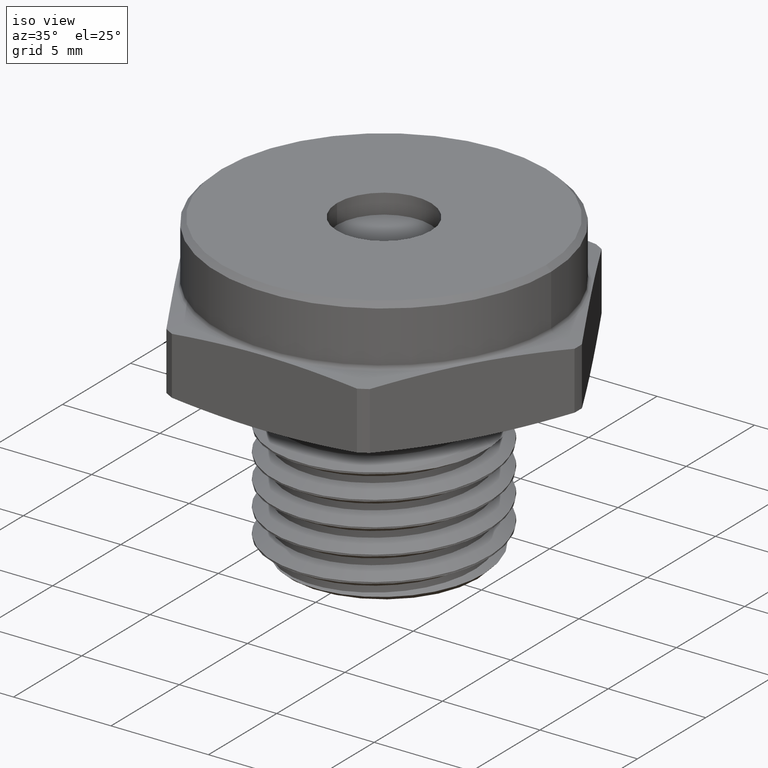
[diagram: clean part render]
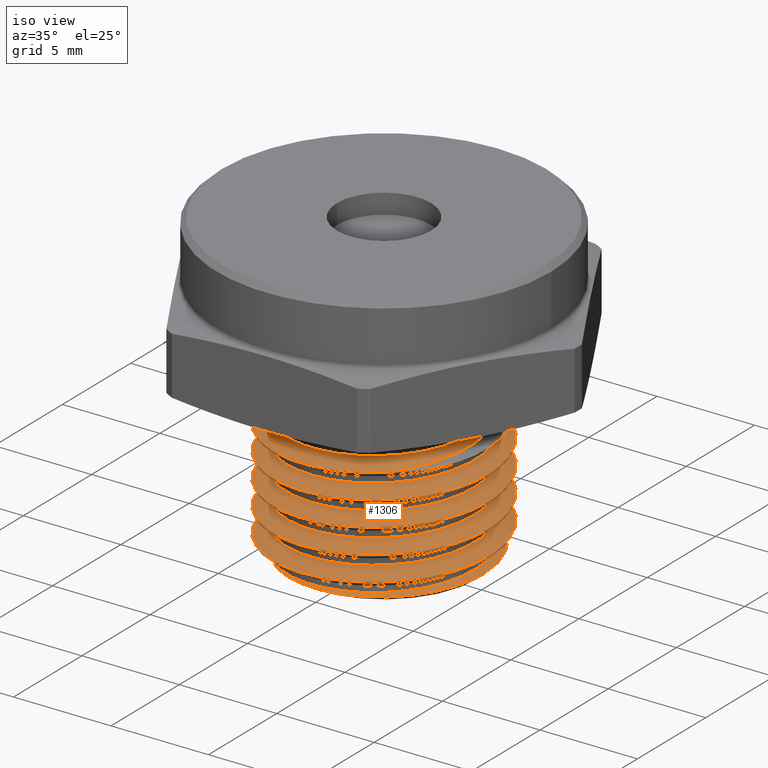
[diagram: same view with one face highlighted and labeled with its STEP entity id]
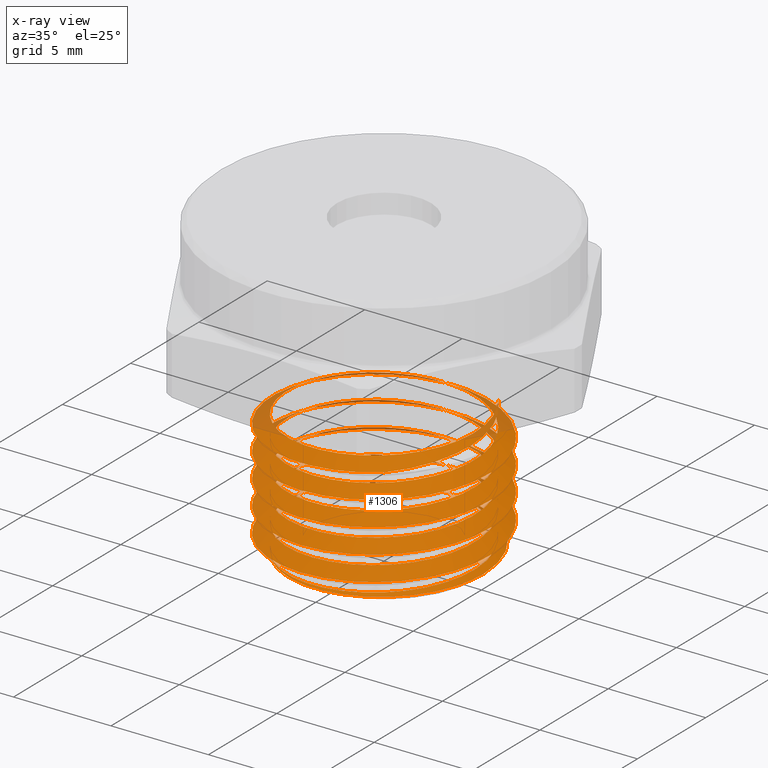
[diagram: x-ray of the same camera — body ghosted, the highlighted face saturated]
A machine part, iso view. The second image highlights one B-rep face of the part: STEP entity #1306.
The next image is the same camera in x-ray: the body ghosted, the highlighted face saturated — about 8% of this face is hidden behind the body in this view.
In plain terms, the highlighted face is a freeform B-spline surface patch.
Its self-contained STEP definition (entity closure, byte-faithful):
#22 = ORIENTED_EDGE ( 'NONE', *, *, #190, .F. ) ;
#23 = ORIENTED_EDGE ( 'NONE', *, *, #213, .T. ) ;
#24 = ORIENTED_EDGE ( 'NONE', *, *, #210, .T. ) ;
#25 = ORIENTED_EDGE ( 'NONE', *, *, #191, .T. ) ;
#26 = ORIENTED_EDGE ( 'NONE', *, *, #141, .F. ) ;
#27 = ORIENTED_EDGE ( 'NONE', *, *, #130, .F. ) ;
#28 = ORIENTED_EDGE ( 'NONE', *, *, #144, .F. ) ;
#29 = ORIENTED_EDGE ( 'NONE', *, *, #134, .F. ) ;
#30 = ORIENTED_EDGE ( 'NONE', *, *, #146, .F. ) ;
#31 = ORIENTED_EDGE ( 'NONE', *, *, #138, .F. ) ;
#32 = ORIENTED_EDGE ( 'NONE', *, *, #148, .F. ) ;
#33 = ORIENTED_EDGE ( 'NONE', *, *, #126, .F. ) ;
#34 = ORIENTED_EDGE ( 'NONE', *, *, #151, .F. ) ;
#35 = ORIENTED_EDGE ( 'NONE', *, *, #180, .T. ) ;
#36 = ORIENTED_EDGE ( 'NONE', *, *, #240, .T. ) ;
#93 = B_SPLINE_CURVE_WITH_KNOTS ( 'NONE', 3,
 ( #1261, #1252, #1245, #1244, #1243, #1242, #1241, #1240, #1237, #1236 ),
 .UNSPECIFIED., .F., .F.,
 ( 4, 2, 2, 2, 4 ),
 ( 1.545718500409955300E-015, 0.001277628197694601600, 0.002555256395387656800, 0.003832884593080712100, 0.005110512790773767000 ),
 .UNSPECIFIED. ) ;
#96 = B_SPLINE_CURVE_WITH_KNOTS ( 'NONE', 3,
 ( #1217, #1246, #1215, #1213 ),
 .UNSPECIFIED., .F., .F.,
 ( 4, 4 ),
 ( 0.0000000000000000000, 8.660194822285057300E-005 ),
 .UNSPECIFIED. ) ;
#99 =( BOUNDED_CURVE ( )  B_SPLINE_CURVE ( 2, ( #1184, #1195, #519, #520, #521, #522, #523, #524, #525, #526, #527, #528, #529, #530, #531, #532, #533, #534, #535, #536, #537, #538, #539, #540, #541, #542, #543, #544, #545, #546, #547, #548, #549, #550, #551, #552, #553, #554, #555, #556, #557, #558, #559, #560, #561, #562, #563, #564, #565, #566, #567, #568, #569, #570, #571, #572, #573, #574, #575, #576, #577, #578, #579, #580, #581, #582, #583, #584, #585, #586, #587, #588, #589, #590, #591, #592, #593, #594, #595, #596, #597, #598, #599, #600, #601, #602, #603, #604, #605, #606, #607 ),
 .UNSPECIFIED., .F., .T. ) 
 B_SPLINE_CURVE_WITH_KNOTS ( ( 3, 2, 2, 2, 2, 2, 2, 2, 2, 2, 2, 2, 2, 2, 2, 2, 2, 2, 2, 2, 2, 2, 2, 2, 2, 2, 2, 2, 2, 2, 2, 2, 2, 2, 2, 2, 2, 2, 2, 2, 2, 2, 2, 2, 2, 3 ),
 ( 0.1560881169592949800, 0.1607142857142857300, 0.1785714285714285800, 0.1964285714285714200, 0.2142857142857142700, 0.2321428571428571500, 0.2500000000000000000, 0.2678571428571428500, 0.2857142857142857000, 0.3035714285714285500, 0.3214285714285714500, 0.3392857142857143000, 0.3571428571428571500, 0.3750000000000000000, 0.3928571428571428500, 0.4107142857142857000, 0.4285714285714285500, 0.4464285714285714500, 0.4642857142857143000, 0.4821428571428571500, 0.5000000000000000000, 0.5178571428571429000, 0.5357142857142855900, 0.5535714285714286000, 0.5714285714285714000, 0.5892857142857143000, 0.6071428571428571000, 0.6250000000000000000, 0.6428571428571429000, 0.6607142857142855900, 0.6785714285714286000, 0.6964285714285714000, 0.7142857142857141900, 0.7321428571428569800, 0.7500000000000000000, 0.7678571428571427900, 0.7857142857142855900, 0.8035714285714286000, 0.8214285714285716200, 0.8392857142857141900, 0.8571428571428569800, 0.8750000000000000000, 0.8928571428571427900, 0.9107142857142855900, 0.9285714285714286000, 0.9427358684701496700 ),
 .UNSPECIFIED. ) 
 CURVE ( )  GEOMETRIC_REPRESENTATION_ITEM ( )  RATIONAL_B_SPLINE_CURVE ( ( 0.9707772699021677300, 0.9802798168145519000, 1.000000000000000000, 0.9238795325112867400, 1.000000000000000000, 0.9238795325112867400, 1.000000000000000000, 0.9238795325112867400, 1.000000000000000000, 0.9238795325112867400, 1.000000000000000000, 0.9238795325112867400, 1.000000000000000000, 0.9238795325112867400, 1.000000000000000000, 0.9238795325112867400, 1.000000000000000000, 0.9238795325112867400, 1.000000000000000000, 0.9238795325112867400, 1.000000000000000000, 0.9238795325112867400, 1.000000000000000000, 0.9238795325112867400, 1.000000000000000000, 0.9238795325112867400, 1.000000000000000000, 0.9238795325112867400, 1.000000000000000000, 0.9238795325112867400, 1.000000000000000000, 0.9238795325112867400, 1.000000000000000000, 0.9238795325112867400, 1.000000000000000000, 0.9238795325112867400, 1.000000000000000000, 0.9238795325112867400, 1.000000000000000000, 0.9238795325112867400, 1.000000000000000000, 0.9238795325112867400, 1.000000000000000000, 0.9238795325112867400, 1.000000000000000000, 0.9238795325112867400, 1.000000000000000000, 0.9238795325112867400, 1.000000000000000000, 0.9238795325112867400, 1.000000000000000000, 0.9238795325112867400, 1.000000000000000000, 0.9238795325112867400, 1.000000000000000000, 0.9238795325112867400, 1.000000000000000000, 0.9238795325112867400, 1.000000000000000000, 0.9238795325112867400, 1.000000000000000000, 0.9238795325112867400, 1.000000000000000000, 0.9238795325112867400, 1.000000000000000000, 0.9238795325112867400, 1.000000000000000000, 0.9238795325112867400, 1.000000000000000000, 0.9238795325112867400, 1.000000000000000000, 0.9238795325112867400, 1.000000000000000000, 0.9238795325112867400, 1.000000000000000000, 0.9238795325112867400, 1.000000000000000000, 0.9238795325112867400, 1.000000000000000000, 0.9238795325112867400, 1.000000000000000000, 0.9238795325112867400, 1.000000000000000000, 0.9238795325112867400, 1.000000000000000000, 0.9238795325112867400, 1.000000000000000000, 0.9238795325112867400, 1.000000000000000000, 0.9396205879388391800, 0.9750281178428471500 ) ) 
 REPRESENTATION_ITEM ( '' )  );
#100 = B_SPLINE_CURVE_WITH_KNOTS ( 'NONE', 3,
 ( #518, #610, #611, #612 ),
 .UNSPECIFIED., .F., .F.,
 ( 4, 4 ),
 ( 0.02933612403957671500, 0.03046420551214443200 ),
 .UNSPECIFIED. ) ;
#104 = B_SPLINE_CURVE_WITH_KNOTS ( 'NONE', 3,
 ( #684, #680, #686, #687, #688, #689, #690, #691, #692, #693, #694, #695, #696, #697, #698, #699, #700, #701, #702, #703, #704, #705, #706, #707, #708, #709, #710, #711, #712, #713, #714, #715, #716, #717, #718, #719, #720, #721 ),
 .UNSPECIFIED., .F., .F.,
 ( 4, 2, 2, 2, 2, 2, 2, 2, 2, 2, 2, 2, 2, 2, 2, 2, 2, 2, 4 ),
 ( 0.01264987542732179900, 0.01369276596558773000, 0.01473565650385366000, 0.01525710177298662600, 0.01577854704211959300, 0.01682143758038552600, 0.01786432811865145500, 0.01890721865691738800, 0.01995010919518332100, 0.02047155446431629000, 0.02099299973344925400, 0.02203589027171518700, 0.02307878080998111700, 0.02412167134824705000, 0.02516456188651298300, 0.02620745242477892000, 0.02725034296304484900, 0.02829323350131077900, 0.02933612403957671500 ),
 .UNSPECIFIED. ) ;
#105 = B_SPLINE_CURVE_WITH_KNOTS ( 'NONE', 3,
 ( #685, #726, #731, #732, #733, #734, #735, #736, #737, #738, #739, #740, #741, #742, #743, #744, #745, #746, #747, #748, #749, #750, #751, #752, #753, #754, #755, #756 ),
 .UNSPECIFIED., .F., .F.,
 ( 4, 2, 2, 2, 2, 2, 2, 2, 2, 2, 2, 2, 2, 4 ),
 ( 0.0000000000000000000, 0.001581234428415226200, 0.003162468856830452400, 0.004743703285245677900, 0.005534320499453290900, 0.006324937713660902200, 0.007115554927868515200, 0.007906172142076128100, 0.008696789356283740300, 0.009487406570491352400, 0.01027802378469896300, 0.01106864099890657500, 0.01185925821311418700, 0.01264987542732179900 ),
 .UNSPECIFIED. ) ;
#108 = B_SPLINE_CURVE_WITH_KNOTS ( 'NONE', 3,
 ( #880, #840, #883, #884, #885, #886, #887, #888 ),
 .UNSPECIFIED., .F., .F.,
 ( 4, 2, 2, 4 ),
 ( 0.005110512790773767000, 0.005863471024549170300, 0.006616429258324574500, 0.008122345725875381900 ),
 .UNSPECIFIED. ) ;
#118 =( BOUNDED_SURFACE ( )  B_SPLINE_SURFACE ( 1, 2, ( 
 ( #2006, #1781, #2008, #2009, #2010, #2011, #2012, #2013, #2014, #2015, #2016, #2017, #2018, #2019, #2020, #2021, #2022, #2023, #2024, #2025, #2026, #2027, #2028, #2029, #2030, #2031, #2032, #2033, #2034, #2035, #2036, #2037, #2038, #2039, #2040, #2041, #2042, #2043, #2044, #2045, #2046, #2047, #2048, #2049, #2050, #2051, #2052, #2053, #2054, #2055, #2056, #2057, #2058, #2059, #2060, #2061, #2062, #2063, #2064, #2065, #2066, #2067, #2068, #2069, #2070, #2071, #2072, #2073, #2074, #2075, #2076, #2077, #2078, #2079, #2080, #2081, #2082, #2083, #2084, #2085, #2086, #2087, #2088, #2089, #2090, #2091, #2092, #2093, #2094, #2095, #2096, #2097, #2098, #2099, #2100, #2101, #2102, #2103, #2104, #2105, #2106, #2107, #2108, #2109, #2110, #2111, #2112, #2113, #2114, #2115, #2116, #2117, #2118 ),
 ( #2119, #2120, #2121, #2122, #2123, #2124, #2125, #2126, #2127, #2128, #2129, #2130, #2131, #2132, #2133, #2134, #2135, #2136, #2137, #2138, #2139, #2140, #2141, #2142, #2143, #2144, #2145, #2146, #2147, #2148, #2149, #2150, #2151, #2152, #2153, #2154, #2155, #2156, #2157, #2158, #2159, #2160, #2161, #2162, #2163, #2164, #2165, #2166, #2167, #2168, #2169, #2170, #2171, #2172, #2173, #2174, #2175, #2176, #2177, #2178, #2179, #2180, #2181, #2182, #2183, #2184, #2185, #2186, #2187, #2188, #2189, #2190, #2191, #2192, #2193, #2194, #2195, #2196, #2197, #2198, #2199, #2200, #2201, #2202, #2203, #2204, #2205, #2206, #2207, #2208, #2209, #2210, #2211, #2212, #2213, #2214, #2215, #2216, #2217, #2218, #2219, #2220, #2221, #2222, #2223, #2224, #2225, #2226, #2227, #2228, #2229, #2230, #2231 ) ),
 .UNSPECIFIED., .F., .F., .F. ) 
 B_SPLINE_SURFACE_WITH_KNOTS ( ( 2, 2 ),
 ( 3, 2, 2, 2, 2, 2, 2, 2, 2, 2, 2, 2, 2, 2, 2, 2, 2, 2, 2, 2, 2, 2, 2, 2, 2, 2, 2, 2, 2, 2, 2, 2, 2, 2, 2, 2, 2, 2, 2, 2, 2, 2, 2, 2, 2, 2, 2, 2, 2, 2, 2, 2, 2, 2, 2, 2, 3 ),
 ( 0.0000000000000000000, 1.000000000000000000 ),
 ( 0.0000000000000000000, 0.01785714285714285600, 0.03571428571428571200, 0.05357142857142856800, 0.07142857142857142500, 0.08928571428571428800, 0.1071428571428571400, 0.1250000000000000000, 0.1428571428571428500, 0.1607142857142857300, 0.1785714285714285800, 0.1964285714285714200, 0.2142857142857142700, 0.2321428571428571500, 0.2500000000000000000, 0.2678571428571428500, 0.2857142857142857000, 0.3035714285714285500, 0.3214285714285714500, 0.3392857142857143000, 0.3571428571428571500, 0.3750000000000000000, 0.3928571428571428500, 0.4107142857142857000, 0.4285714285714285500, 0.4464285714285714500, 0.4642857142857143000, 0.4821428571428571500, 0.5000000000000000000, 0.5178571428571429000, 0.5357142857142857000, 0.5535714285714286000, 0.5714285714285714000, 0.5892857142857143000, 0.6071428571428571000, 0.6250000000000000000, 0.6428571428571429000, 0.6607142857142857000, 0.6785714285714286000, 0.6964285714285714000, 0.7142857142857143000, 0.7321428571428571000, 0.7500000000000000000, 0.7678571428571429000, 0.7857142857142857000, 0.8035714285714286000, 0.8214285714285714000, 0.8392857142857143000, 0.8571428571428571000, 0.8750000000000000000, 0.8928571428571429000, 0.9107142857142857000, 0.9285714285714286000, 0.9464285714285714000, 0.9642857142857143000, 0.9821428571428571000, 1.000000000000000000 ),
 .UNSPECIFIED. ) 
 GEOMETRIC_REPRESENTATION_ITEM ( )  RATIONAL_B_SPLINE_SURFACE ( (
 ( 1.000000000000000000, 0.9238795325112867400, 1.000000000000000000, 0.9238795325112867400, 1.000000000000000000, 0.9238795325112867400, 1.000000000000000000, 0.9238795325112867400, 1.000000000000000000, 0.9238795325112867400, 1.000000000000000000, 0.9238795325112867400, 1.000000000000000000, 0.9238795325112867400, 1.000000000000000000, 0.9238795325112867400, 1.000000000000000000, 0.9238795325112867400, 1.000000000000000000, 0.9238795325112867400, 1.000000000000000000, 0.9238795325112867400, 1.000000000000000000, 0.9238795325112867400, 1.000000000000000000, 0.9238795325112867400, 1.000000000000000000, 0.9238795325112867400, 1.000000000000000000, 0.9238795325112867400, 1.000000000000000000, 0.9238795325112867400, 1.000000000000000000, 0.9238795325112867400, 1.000000000000000000, 0.9238795325112867400, 1.000000000000000000, 0.9238795325112867400, 1.000000000000000000, 0.9238795325112867400, 1.000000000000000000, 0.9238795325112867400, 1.000000000000000000, 0.9238795325112867400, 1.000000000000000000, 0.9238795325112867400, 1.000000000000000000, 0.9238795325112867400, 1.000000000000000000, 0.9238795325112867400, 1.000000000000000000, 0.9238795325112867400, 1.000000000000000000, 0.9238795325112867400, 1.000000000000000000, 0.9238795325112867400, 1.000000000000000000, 0.9238795325112867400, 1.000000000000000000, 0.9238795325112867400, 1.000000000000000000, 0.9238795325112867400, 1.000000000000000000, 0.9238795325112867400, 1.000000000000000000, 0.9238795325112867400, 1.000000000000000000, 0.9238795325112867400, 1.000000000000000000, 0.9238795325112867400, 1.000000000000000000, 0.9238795325112867400, 1.000000000000000000, 0.9238795325112867400, 1.000000000000000000, 0.9238795325112867400, 1.000000000000000000, 0.9238795325112867400, 1.000000000000000000, 0.9238795325112867400, 1.000000000000000000, 0.9238795325112867400, 1.000000000000000000, 0.9238795325112867400, 1.000000000000000000, 0.9238795325112867400, 1.000000000000000000, 0.9238795325112867400, 1.000000000000000000, 0.9238795325112867400, 1.000000000000000000, 0.9238795325112867400, 1.000000000000000000, 0.9238795325112867400, 1.000000000000000000, 0.9238795325112867400, 1.000000000000000000, 0.9238795325112867400, 1.000000000000000000, 0.9238795325112867400, 1.000000000000000000, 0.9238795325112867400, 1.000000000000000000, 0.9238795325112867400, 1.000000000000000000, 0.9238795325112867400, 1.000000000000000000, 0.9238795325112867400, 1.000000000000000000, 0.9238795325112867400, 1.000000000000000000, 0.9238795325112867400, 1.000000000000000000),
 ( 1.000000000000000000, 0.9238795325112867400, 1.000000000000000000, 0.9238795325112867400, 1.000000000000000000, 0.9238795325112867400, 1.000000000000000000, 0.9238795325112867400, 1.000000000000000000, 0.9238795325112867400, 1.000000000000000000, 0.9238795325112867400, 1.000000000000000000, 0.9238795325112867400, 1.000000000000000000, 0.9238795325112867400, 1.000000000000000000, 0.9238795325112867400, 1.000000000000000000, 0.9238795325112867400, 1.000000000000000000, 0.9238795325112867400, 1.000000000000000000, 0.9238795325112867400, 1.000000000000000000, 0.9238795325112867400, 1.000000000000000000, 0.9238795325112867400, 1.000000000000000000, 0.9238795325112867400, 1.000000000000000000, 0.9238795325112867400, 1.000000000000000000, 0.9238795325112867400, 1.000000000000000000, 0.9238795325112867400, 1.000000000000000000, 0.9238795325112867400, 1.000000000000000000, 0.9238795325112867400, 1.000000000000000000, 0.9238795325112867400, 1.000000000000000000, 0.9238795325112867400, 1.000000000000000000, 0.9238795325112867400, 1.000000000000000000, 0.9238795325112867400, 1.000000000000000000, 0.9238795325112867400, 1.000000000000000000, 0.9238795325112867400, 1.000000000000000000, 0.9238795325112867400, 1.000000000000000000, 0.9238795325112867400, 1.000000000000000000, 0.9238795325112867400, 1.000000000000000000, 0.9238795325112867400, 1.000000000000000000, 0.9238795325112867400, 1.000000000000000000, 0.9238795325112867400, 1.000000000000000000, 0.9238795325112867400, 1.000000000000000000, 0.9238795325112867400, 1.000000000000000000, 0.9238795325112867400, 1.000000000000000000, 0.9238795325112867400, 1.000000000000000000, 0.9238795325112867400, 1.000000000000000000, 0.9238795325112867400, 1.000000000000000000, 0.9238795325112867400, 1.000000000000000000, 0.9238795325112867400, 1.000000000000000000, 0.9238795325112867400, 1.000000000000000000, 0.9238795325112867400, 1.000000000000000000, 0.9238795325112867400, 1.000000000000000000, 0.9238795325112867400, 1.000000000000000000, 0.9238795325112867400, 1.000000000000000000, 0.9238795325112867400, 1.000000000000000000, 0.9238795325112867400, 1.000000000000000000, 0.9238795325112867400, 1.000000000000000000, 0.9238795325112867400, 1.000000000000000000, 0.9238795325112867400, 1.000000000000000000, 0.9238795325112867400, 1.000000000000000000, 0.9238795325112867400, 1.000000000000000000, 0.9238795325112867400, 1.000000000000000000, 0.9238795325112867400, 1.000000000000000000, 0.9238795325112867400, 1.000000000000000000, 0.9238795325112867400, 1.000000000000000000) ) ) 
 REPRESENTATION_ITEM ( '' )  SURFACE ( )  );
#126 = EDGE_CURVE ( 'NONE', #1667, #2331, #2343, .T. ) ;
#130 = EDGE_CURVE ( 'NONE', #311, #1636, #2346, .T. ) ;
#134 = EDGE_CURVE ( 'NONE', #354, #1647, #2348, .T. ) ;
#138 = EDGE_CURVE ( 'NONE', #367, #365, #2350, .T. ) ;
#141 = EDGE_CURVE ( 'NONE', #1636, #2326, #2352, .T. ) ;
#144 = EDGE_CURVE ( 'NONE', #1647, #311, #2354, .T. ) ;
#146 = EDGE_CURVE ( 'NONE', #365, #354, #2356, .T. ) ;
#148 = EDGE_CURVE ( 'NONE', #2331, #367, #2358, .T. ) ;
#151 = EDGE_CURVE ( 'NONE', #2323, #1667, #2360, .T. ) ;
#180 = EDGE_CURVE ( 'NONE', #2323, #1638, #93, .T. ) ;
#183 = EDGE_CURVE ( 'NONE', #1644, #381, #96, .T. ) ;
#190 = EDGE_CURVE ( 'NONE', #1662, #381, #99, .T. ) ;
#191 = EDGE_CURVE ( 'NONE', #371, #2326, #100, .T. ) ;
#210 = EDGE_CURVE ( 'NONE', #1668, #371, #104, .T. ) ;
#213 = EDGE_CURVE ( 'NONE', #1662, #1668, #105, .T. ) ;
#240 = EDGE_CURVE ( 'NONE', #1638, #1644, #108, .T. ) ;
#311 = VERTEX_POINT ( 'NONE', #1010 ) ;
#354 = VERTEX_POINT ( 'NONE', #1020 ) ;
#365 = VERTEX_POINT ( 'NONE', #1028 ) ;
#367 = VERTEX_POINT ( 'NONE', #1030 ) ;
#371 = VERTEX_POINT ( 'NONE', #1034 ) ;
#381 = VERTEX_POINT ( 'NONE', #1044 ) ;
#518 = CARTESIAN_POINT ( 'NONE',  ( -0.2177341565054834200, 2.177697431621966800E-017, -0.3212658434945171400 ) ) ;
#519 = CARTESIAN_POINT ( 'NONE',  ( -0.1336431792995438900, -0.1336431839889709900, -0.3484261703687760400 ) ) ;
#520 = CARTESIAN_POINT ( 'NONE',  ( -0.07828635997258923100, -0.1890000013735013400, -0.3453011703687761100 ) ) ;
#521 = CARTESIAN_POINT ( 'NONE',  ( 3.315925717588489000E-009, -0.1889999999999999500, -0.3421761703687760100 ) ) ;
#522 = CARTESIAN_POINT ( 'NONE',  ( 0.07828636660444067400, -0.1889999986264985500, -0.3390511703687760200 ) ) ;
#523 = CARTESIAN_POINT ( 'NONE',  ( 0.1336431839889709900, -0.1336431792995438900, -0.3359261703687760300 ) ) ;
#524 = CARTESIAN_POINT ( 'NONE',  ( 0.1890000013735013400, -0.07828635997258923100, -0.3328011703687759900 ) ) ;
#525 = CARTESIAN_POINT ( 'NONE',  ( 0.1889999999999999500, 3.315925706015577100E-009, -0.3296761703687760000 ) ) ;
#526 = CARTESIAN_POINT ( 'NONE',  ( 0.1889999986264985800, 0.07828636660444064600, -0.3265511703687760100 ) ) ;
#527 = CARTESIAN_POINT ( 'NONE',  ( 0.1336431792995439200, 0.1336431839889709900, -0.3234261703687760200 ) ) ;
#528 = CARTESIAN_POINT ( 'NONE',  ( 0.07828635997258932800, 0.1890000013735013100, -0.3203011703687760300 ) ) ;
#529 = CARTESIAN_POINT ( 'NONE',  ( -3.315925694442664400E-009, 0.1889999999999999500, -0.3171761703687759900 ) ) ;
#530 = CARTESIAN_POINT ( 'NONE',  ( -0.07828636660444073000, 0.1889999986264985200, -0.3140511703687760000 ) ) ;
#531 = CARTESIAN_POINT ( 'NONE',  ( -0.1336431839889709900, 0.1336431792995439200, -0.3109261703687760100 ) ) ;
#532 = CARTESIAN_POINT ( 'NONE',  ( -0.1890000013735013100, 0.07828635997258934200, -0.3078011703687759700 ) ) ;
#533 = CARTESIAN_POINT ( 'NONE',  ( -0.1889999999999999500, -3.315925729161401300E-009, -0.3046761703687759800 ) ) ;
#534 = CARTESIAN_POINT ( 'NONE',  ( -0.1889999986264985500, -0.07828636660444068800, -0.3015511703687760400 ) ) ;
#535 = CARTESIAN_POINT ( 'NONE',  ( -0.1336431792995438900, -0.1336431839889709900, -0.2984261703687760600 ) ) ;
#536 = CARTESIAN_POINT ( 'NONE',  ( -0.07828635997258923100, -0.1890000013735013400, -0.2953011703687760100 ) ) ;
#537 = CARTESIAN_POINT ( 'NONE',  ( 3.315925717588489000E-009, -0.1889999999999999500, -0.2921761703687759700 ) ) ;
#538 = CARTESIAN_POINT ( 'NONE',  ( 0.07828636660444067400, -0.1889999986264985500, -0.2890511703687760300 ) ) ;
#539 = CARTESIAN_POINT ( 'NONE',  ( 0.1336431839889709900, -0.1336431792995438900, -0.2859261703687760400 ) ) ;
#540 = CARTESIAN_POINT ( 'NONE',  ( 0.1890000013735013400, -0.07828635997258923100, -0.2828011703687760000 ) ) ;
#541 = CARTESIAN_POINT ( 'NONE',  ( 0.1889999999999999500, 3.315925706015577100E-009, -0.2796761703687760100 ) ) ;
#542 = CARTESIAN_POINT ( 'NONE',  ( 0.1889999986264985800, 0.07828636660444064600, -0.2765511703687760200 ) ) ;
#543 = CARTESIAN_POINT ( 'NONE',  ( 0.1336431792995439200, 0.1336431839889709900, -0.2734261703687760300 ) ) ;
#544 = CARTESIAN_POINT ( 'NONE',  ( 0.07828635997258932800, 0.1890000013735013100, -0.2703011703687759900 ) ) ;
#545 = CARTESIAN_POINT ( 'NONE',  ( -3.315925694442664400E-009, 0.1889999999999999500, -0.2671761703687760000 ) ) ;
#546 = CARTESIAN_POINT ( 'NONE',  ( -0.07828636660444073000, 0.1889999986264985200, -0.2640511703687759600 ) ) ;
#547 = CARTESIAN_POINT ( 'NONE',  ( -0.1336431839889709900, 0.1336431792995439200, -0.2609261703687760200 ) ) ;
#548 = CARTESIAN_POINT ( 'NONE',  ( -0.1890000013735013100, 0.07828635997258934200, -0.2578011703687759800 ) ) ;
#549 = CARTESIAN_POINT ( 'NONE',  ( -0.1889999999999999500, -3.315925729161401300E-009, -0.2546761703687760400 ) ) ;
#550 = CARTESIAN_POINT ( 'NONE',  ( -0.1889999986264985500, -0.07828636660444068800, -0.2515511703687760000 ) ) ;
#551 = CARTESIAN_POINT ( 'NONE',  ( -0.1336431792995438900, -0.1336431839889709900, -0.2484261703687760100 ) ) ;
#552 = CARTESIAN_POINT ( 'NONE',  ( -0.07828635997258923100, -0.1890000013735013400, -0.2453011703687759900 ) ) ;
#553 = CARTESIAN_POINT ( 'NONE',  ( 3.315925717588489000E-009, -0.1889999999999999500, -0.2421761703687760100 ) ) ;
#554 = CARTESIAN_POINT ( 'NONE',  ( 0.07828636660444067400, -0.1889999986264985500, -0.2390511703687759900 ) ) ;
#555 = CARTESIAN_POINT ( 'NONE',  ( 0.1336431839889709900, -0.1336431792995438900, -0.2359261703687760000 ) ) ;
#556 = CARTESIAN_POINT ( 'NONE',  ( 0.1890000013735013400, -0.07828635997258923100, -0.2328011703687760400 ) ) ;
#557 = CARTESIAN_POINT ( 'NONE',  ( 0.1889999999999999500, 3.315925706015577100E-009, -0.2296761703687760200 ) ) ;
#558 = CARTESIAN_POINT ( 'NONE',  ( 0.1889999986264985800, 0.07828636660444064600, -0.2265511703687760100 ) ) ;
#559 = CARTESIAN_POINT ( 'NONE',  ( 0.1336431792995439200, 0.1336431839889709900, -0.2234261703687760200 ) ) ;
#560 = CARTESIAN_POINT ( 'NONE',  ( 0.07828635997258932800, 0.1890000013735013100, -0.2203011703687760000 ) ) ;
#561 = CARTESIAN_POINT ( 'NONE',  ( -3.315925694442664400E-009, 0.1889999999999999500, -0.2171761703687760100 ) ) ;
#562 = CARTESIAN_POINT ( 'NONE',  ( -0.07828636660444073000, 0.1889999986264985200, -0.2140511703687760200 ) ) ;
#563 = CARTESIAN_POINT ( 'NONE',  ( -0.1336431839889709900, 0.1336431792995439200, -0.2109261703687760100 ) ) ;
#564 = CARTESIAN_POINT ( 'NONE',  ( -0.1890000013735013100, 0.07828635997258934200, -0.2078011703687760200 ) ) ;
#565 = CARTESIAN_POINT ( 'NONE',  ( -0.1889999999999999500, -3.315925729161401300E-009, -0.2046761703687760000 ) ) ;
#566 = CARTESIAN_POINT ( 'NONE',  ( -0.1889999986264985500, -0.07828636660444068800, -0.2015511703687760100 ) ) ;
#567 = CARTESIAN_POINT ( 'NONE',  ( -0.1336431792995438900, -0.1336431839889709900, -0.1984261703687759900 ) ) ;
#568 = CARTESIAN_POINT ( 'NONE',  ( -0.07828635997258923100, -0.1890000013735013400, -0.1953011703687759800 ) ) ;
#569 = CARTESIAN_POINT ( 'NONE',  ( 3.315925717588489000E-009, -0.1889999999999999500, -0.1921761703687759900 ) ) ;
#570 = CARTESIAN_POINT ( 'NONE',  ( 0.07828636660444067400, -0.1889999986264985500, -0.1890511703687760300 ) ) ;
#571 = CARTESIAN_POINT ( 'NONE',  ( 0.1336431839889709900, -0.1336431792995438900, -0.1859261703687760100 ) ) ;
#572 = CARTESIAN_POINT ( 'NONE',  ( 0.1890000013735013400, -0.07828635997258923100, -0.1828011703687760200 ) ) ;
#573 = CARTESIAN_POINT ( 'NONE',  ( 0.1889999999999999500, 3.315925706015577100E-009, -0.1796761703687760100 ) ) ;
#574 = CARTESIAN_POINT ( 'NONE',  ( 0.1889999986264985800, 0.07828636660444064600, -0.1765511703687760200 ) ) ;
#575 = CARTESIAN_POINT ( 'NONE',  ( 0.1336431792995439200, 0.1336431839889709900, -0.1734261703687760000 ) ) ;
#576 = CARTESIAN_POINT ( 'NONE',  ( 0.07828635997258932800, 0.1890000013735013100, -0.1703011703687760100 ) ) ;
#577 = CARTESIAN_POINT ( 'NONE',  ( -3.315925694442664400E-009, 0.1889999999999999500, -0.1671761703687759900 ) ) ;
#578 = CARTESIAN_POINT ( 'NONE',  ( -0.07828636660444073000, 0.1889999986264985200, -0.1640511703687760100 ) ) ;
#579 = CARTESIAN_POINT ( 'NONE',  ( -0.1336431839889709900, 0.1336431792995439200, -0.1609261703687759900 ) ) ;
#580 = CARTESIAN_POINT ( 'NONE',  ( -0.1890000013735013100, 0.07828635997258934200, -0.1578011703687760000 ) ) ;
#581 = CARTESIAN_POINT ( 'NONE',  ( -0.1889999999999999500, -3.315925729161401300E-009, -0.1546761703687759800 ) ) ;
#582 = CARTESIAN_POINT ( 'NONE',  ( -0.1889999986264985500, -0.07828636660444068800, -0.1515511703687759900 ) ) ;
#583 = CARTESIAN_POINT ( 'NONE',  ( -0.1336431792995438900, -0.1336431839889709900, -0.1484261703687759800 ) ) ;
#584 = CARTESIAN_POINT ( 'NONE',  ( -0.07828635997258923100, -0.1890000013735013400, -0.1453011703687760200 ) ) ;
#585 = CARTESIAN_POINT ( 'NONE',  ( 3.315925717588489000E-009, -0.1889999999999999500, -0.1421761703687760000 ) ) ;
#586 = CARTESIAN_POINT ( 'NONE',  ( 0.07828636660444067400, -0.1889999986264985500, -0.1390511703687760100 ) ) ;
#587 = CARTESIAN_POINT ( 'NONE',  ( 0.1336431839889709900, -0.1336431792995438900, -0.1359261703687759900 ) ) ;
#588 = CARTESIAN_POINT ( 'NONE',  ( 0.1890000013735013400, -0.07828635997258923100, -0.1328011703687760100 ) ) ;
#589 = CARTESIAN_POINT ( 'NONE',  ( 0.1889999999999999500, 3.315925706015577100E-009, -0.1296761703687759900 ) ) ;
#590 = CARTESIAN_POINT ( 'NONE',  ( 0.1889999986264985800, 0.07828636660444064600, -0.1265511703687760000 ) ) ;
#591 = CARTESIAN_POINT ( 'NONE',  ( 0.1336431792995439200, 0.1336431839889709900, -0.1234261703687759800 ) ) ;
#592 = CARTESIAN_POINT ( 'NONE',  ( 0.07828635997258932800, 0.1890000013735013100, -0.1203011703687759900 ) ) ;
#593 = CARTESIAN_POINT ( 'NONE',  ( -3.315925694442664400E-009, 0.1889999999999999500, -0.1171761703687759800 ) ) ;
#594 = CARTESIAN_POINT ( 'NONE',  ( -0.07828636660444073000, 0.1889999986264985200, -0.1140511703687760200 ) ) ;
#595 = CARTESIAN_POINT ( 'NONE',  ( -0.1336431839889709900, 0.1336431792995439200, -0.1109261703687759900 ) ) ;
#596 = CARTESIAN_POINT ( 'NONE',  ( -0.1890000013735013100, 0.07828635997258934200, -0.1078011703687760000 ) ) ;
#597 = CARTESIAN_POINT ( 'NONE',  ( -0.1889999999999999500, -3.315925729161401300E-009, -0.1046761703687760100 ) ) ;
#598 = CARTESIAN_POINT ( 'NONE',  ( -0.1889999986264985500, -0.07828636660444068800, -0.1015511703687759900 ) ) ;
#599 = CARTESIAN_POINT ( 'NONE',  ( -0.1336431792995438900, -0.1336431839889709900, -0.09842617036877601700 ) ) ;
#600 = CARTESIAN_POINT ( 'NONE',  ( -0.07828635997258923100, -0.1890000013735013400, -0.09530117036877600000 ) ) ;
#601 = CARTESIAN_POINT ( 'NONE',  ( 3.315925717588489000E-009, -0.1889999999999999500, -0.09217617036877601100 ) ) ;
#602 = CARTESIAN_POINT ( 'NONE',  ( 0.07828636660444067400, -0.1889999986264985500, -0.08905117036877603600 ) ) ;
#603 = CARTESIAN_POINT ( 'NONE',  ( 0.1336431839889709900, -0.1336431792995438900, -0.08592617036877597800 ) ) ;
#604 = CARTESIAN_POINT ( 'NONE',  ( 0.1890000013735013400, -0.07828635997258923100, -0.08280117036877598900 ) ) ;
#605 = CARTESIAN_POINT ( 'NONE',  ( 0.1889999999999999500, 3.315925706015577100E-009, -0.07967617036877600000 ) ) ;
#606 = CARTESIAN_POINT ( 'NONE',  ( 0.1889999989287783300, 0.06105713154328890100, -0.07723891926021032900 ) ) ;
#607 = CARTESIAN_POINT ( 'NONE',  ( 0.1532785671802325300, 0.1105743227118074500, -0.07467168204323813800 ) ) ;
#610 = CARTESIAN_POINT ( 'NONE',  ( -0.2180628217123294900, -0.01496176153522844900, -0.3209371782876711000 ) ) ;
#611 = CARTESIAN_POINT ( 'NONE',  ( -0.2168753255671533300, -0.02981528031965584600, -0.3205984917190050600 ) ) ;
#612 = CARTESIAN_POINT ( 'NONE',  ( -0.2141634217979623800, -0.04455997378576466400, -0.3202500000000006500 ) ) ;
#680 = CARTESIAN_POINT ( 'NONE',  ( 0.2022091445348103100, 0.01369064375237152000, -0.3367908554651575800 ) ) ;
#684 = CARTESIAN_POINT ( 'NONE',  ( 0.2018847916001049700, 4.562704868132047300E-013, -0.3371152083998952800 ) ) ;
#685 = CARTESIAN_POINT ( 'NONE',  ( -0.1576951779047648900, -0.1041788407767361300, -0.3500000000000000900 ) ) ;
#686 = CARTESIAN_POINT ( 'NONE',  ( 0.2011266717357358700, 0.02762620893792773100, -0.3364483339436827900 ) ) ;
#687 = CARTESIAN_POINT ( 'NONE',  ( 0.1962422918846625500, 0.05461671587252211300, -0.3357610896130904200 ) ) ;
#688 = CARTESIAN_POINT ( 'NONE',  ( 0.1924704004388491900, 0.06776496504533792400, -0.3354143948183748700 ) ) ;
#689 = CARTESIAN_POINT ( 'NONE',  ( 0.1847879325108709400, 0.08695898562845177900, -0.3348897762009659400 ) ) ;
#690 = CARTESIAN_POINT ( 'NONE',  ( 0.1818762693925866400, 0.09327980266311401700, -0.3347137629521939600 ) ) ;
#691 = CARTESIAN_POINT ( 'NONE',  ( 0.1754980885075172700, 0.1054604254621587500, -0.3343680178892605200 ) ) ;
#692 = CARTESIAN_POINT ( 'NONE',  ( 0.1720190643956150100, 0.1113565030483452300, -0.3341973117618486400 ) ) ;
#693 = CARTESIAN_POINT ( 'NONE',  ( 0.1607272403048631000, 0.1284721140790561500, -0.3336915073274887000 ) ) ;
#694 = CARTESIAN_POINT ( 'NONE',  ( 0.1519940902516982400, 0.1391905470718994300, -0.3333654821881930600 ) ) ;
#695 = CARTESIAN_POINT ( 'NONE',  ( 0.1324679144576127200, 0.1587296165928350800, -0.3327181961622980900 ) ) ;
#696 = CARTESIAN_POINT ( 'NONE',  ( 0.1218758115371474800, 0.1673997273931837300, -0.3323873373867214400 ) ) ;
#697 = CARTESIAN_POINT ( 'NONE',  ( 0.09907313135962346500, 0.1825935784731971800, -0.3317120108639992600 ) ) ;
#698 = CARTESIAN_POINT ( 'NONE',  ( 0.08672982880817849100, 0.1891518168174737300, -0.3313641862954474500 ) ) ;
#699 = CARTESIAN_POINT ( 'NONE',  ( 0.06135757617673389500, 0.1995480419016293100, -0.3306821387797899700 ) ) ;
#700 = CARTESIAN_POINT ( 'NONE',  ( 0.04825750771877927000, 0.2034635795261300300, -0.3303454869146532100 ) ) ;
#701 = CARTESIAN_POINT ( 'NONE',  ( 0.02797827857413455100, 0.2073875575287834600, -0.3298469322810599300 ) ) ;
#702 = CARTESIAN_POINT ( 'NONE',  ( 0.02108571668070921600, 0.2083676675710314000, -0.3296812161767671000 ) ) ;
#703 = CARTESIAN_POINT ( 'NONE',  ( 0.007378730939048375500, 0.2096241416238177600, -0.3293589082596172200 ) ) ;
#704 = CARTESIAN_POINT ( 'NONE',  ( 0.0005333741713555017100, 0.2099070435896124000, -0.3292036124715533900 ) ) ;
#705 = CARTESIAN_POINT ( 'NONE',  ( -0.01997876770265740900, 0.2097638631768932200, -0.3287308377635848000 ) ) ;
#706 = CARTESIAN_POINT ( 'NONE',  ( -0.03367068433398728200, 0.2083464608771358200, -0.3284041173798839500 ) ) ;
#707 = CARTESIAN_POINT ( 'NONE',  ( -0.06078318059832965600, 0.2028049143463698800, -0.3277345476428140700 ) ) ;
#708 = CARTESIAN_POINT ( 'NONE',  ( -0.07386371782619302600, 0.1987602607301629800, -0.3274001807123209700 ) ) ;
#709 = CARTESIAN_POINT ( 'NONE',  ( -0.09910546237550919800, 0.1882091241606765900, -0.3267323374700207800 ) ) ;
#710 = CARTESIAN_POINT ( 'NONE',  ( -0.1113903111973829600, 0.1816084728306779100, -0.3263952383617171300 ) ) ;
#711 = CARTESIAN_POINT ( 'NONE',  ( -0.1342078674206223200, 0.1662983379458675100, -0.3257437346292506600 ) ) ;
#712 = CARTESIAN_POINT ( 'NONE',  ( -0.1447628683764357900, 0.1576153459833734000, -0.3254335634911004700 ) ) ;
#713 = CARTESIAN_POINT ( 'NONE',  ( -0.1641890514006301100, 0.1382231612509807700, -0.3248145094570329400 ) ) ;
#714 = CARTESIAN_POINT ( 'NONE',  ( -0.1730763546468306900, 0.1274610129550573200, -0.3244900472848124600 ) ) ;
#715 = CARTESIAN_POINT ( 'NONE',  ( -0.1884141635696389100, 0.1047887615322938000, -0.3238410656523280600 ) ) ;
#716 = CARTESIAN_POINT ( 'NONE',  ( -0.1949770378955670000, 0.09278396783809153600, -0.3235133438780593600 ) ) ;
#717 = CARTESIAN_POINT ( 'NONE',  ( -0.2058337428852838300, 0.06740259139607700200, -0.3228513751850875000 ) ) ;
#718 = CARTESIAN_POINT ( 'NONE',  ( -0.2100212624658376000, 0.05422334890741269100, -0.3225224980190126200 ) ) ;
#719 = CARTESIAN_POINT ( 'NONE',  ( -0.2157988759843916800, 0.02751378043347908800, -0.3218835114522212200 ) ) ;
#720 = CARTESIAN_POINT ( 'NONE',  ( -0.2174303115768927700, 0.01383187289244680900, -0.3215696884231077900 ) ) ;
#721 = CARTESIAN_POINT ( 'NONE',  ( -0.2177341565054834200, 2.177697431621966800E-017, -0.3212658434945171400 ) ) ;
#726 = CARTESIAN_POINT ( 'NONE',  ( -0.1465737275840257300, -0.1220395054341528500, -0.3494343690337370400 ) ) ;
#731 = CARTESIAN_POINT ( 'NONE',  ( -0.1328244797150970600, -0.1375737091034292800, -0.3489278909445866500 ) ) ;
#732 = CARTESIAN_POINT ( 'NONE',  ( -0.1002426665112863500, -0.1641346460911519400, -0.3478264844977934600 ) ) ;
#733 = CARTESIAN_POINT ( 'NONE',  ( -0.08221833642170005300, -0.1744771705608843000, -0.3472675529427832200 ) ) ;
#734 = CARTESIAN_POINT ( 'NONE',  ( -0.04287796023748938900, -0.1892024729302991000, -0.3461391989005208100 ) ) ;
#735 = CARTESIAN_POINT ( 'NONE',  ( -0.02247249685240797600, -0.1932339296012228800, -0.3455959975787613600 ) ) ;
#736 = CARTESIAN_POINT ( 'NONE',  ( 0.008958117712722360100, -0.1942579982182441900, -0.3448181171765117800 ) ) ;
#737 = CARTESIAN_POINT ( 'NONE',  ( 0.01943602312716813400, -0.1937497562702618600, -0.3445543444591762600 ) ) ;
#738 = CARTESIAN_POINT ( 'NONE',  ( 0.04002203465792485100, -0.1911116355744976700, -0.3440184459518420000 ) ) ;
#739 = CARTESIAN_POINT ( 'NONE',  ( 0.05018956002674445500, -0.1889826233635800400, -0.3437464180515038500 ) ) ;
#740 = CARTESIAN_POINT ( 'NONE',  ( 0.07026713674136798900, -0.1830626282052473000, -0.3431941427180944000 ) ) ;
#741 = CARTESIAN_POINT ( 'NONE',  ( 0.08008663875604760100, -0.1792834567213912600, -0.3429162550807784400 ) ) ;
#742 = CARTESIAN_POINT ( 'NONE',  ( 0.09880301334685587200, -0.1703188191447666800, -0.3423710523304860900 ) ) ;
#743 = CARTESIAN_POINT ( 'NONE',  ( 0.1077770873767196600, -0.1651120866420083800, -0.3421016267104314800 ) ) ;
#744 = CARTESIAN_POINT ( 'NONE',  ( 0.1249427029551230700, -0.1532228250836789300, -0.3415690479338487400 ) ) ;
#745 = CARTESIAN_POINT ( 'NONE',  ( 0.1331141149848553700, -0.1465296319368325200, -0.3413071913524746700 ) ) ;
#746 = CARTESIAN_POINT ( 'NONE',  ( 0.1480913446042752500, -0.1321299223639870200, -0.3408043676621063700 ) ) ;
#747 = CARTESIAN_POINT ( 'NONE',  ( 0.1549883769388855600, -0.1243821021236810300, -0.3405465301477356700 ) ) ;
#748 = CARTESIAN_POINT ( 'NONE',  ( 0.1675880241416938000, -0.1077800982013700800, -0.3400181646844073800 ) ) ;
#749 = CARTESIAN_POINT ( 'NONE',  ( 0.1733013936011776900, -0.09887718254830338300, -0.3397463772709457500 ) ) ;
#750 = CARTESIAN_POINT ( 'NONE',  ( 0.1831302530618775000, -0.08054853575619822000, -0.3392083782616843200 ) ) ;
#751 = CARTESIAN_POINT ( 'NONE',  ( 0.1873038335861787500, -0.07105861154734599600, -0.3389400189187735100 ) ) ;
#752 = CARTESIAN_POINT ( 'NONE',  ( 0.1941694832055915200, -0.05142764453829606900, -0.3384045501259088700 ) ) ;
#753 = CARTESIAN_POINT ( 'NONE',  ( 0.1968698811077884100, -0.04119922778664970200, -0.3381353038024793600 ) ) ;
#754 = CARTESIAN_POINT ( 'NONE',  ( 0.2005902882382762100, -0.02069480798567171700, -0.3376142047363075400 ) ) ;
#755 = CARTESIAN_POINT ( 'NONE',  ( 0.2016388990502643900, -0.01037890193286837200, -0.3373611009497574600 ) ) ;
#756 = CARTESIAN_POINT ( 'NONE',  ( 0.2018847916001049700, 4.562704868132047300E-013, -0.3371152083998952800 ) ) ;
#840 = CARTESIAN_POINT ( 'NONE',  ( 0.1999511666152689900, 0.009848937935752501800, -0.08562883614493248300 ) ) ;
#880 = CARTESIAN_POINT ( 'NONE',  ( 0.2008265802793533200, 4.160693725021959300E-016, -0.08650424980901681700 ) ) ;
#883 = CARTESIAN_POINT ( 'NONE',  ( 0.1982904996274097400, 0.01977432223590997900, -0.08470766561282734600 ) ) ;
#884 = CARTESIAN_POINT ( 'NONE',  ( 0.1935196817891513800, 0.03899799100513835800, -0.08284131683995771300 ) ) ;
#885 = CARTESIAN_POINT ( 'NONE',  ( 0.1904193068771118900, 0.04834092908018487000, -0.08189287475915151000 ) ) ;
#886 = CARTESIAN_POINT ( 'NONE',  ( 0.1790102944280549900, 0.07557648535186729800, -0.07899783474472761600 ) ) ;
#887 = CARTESIAN_POINT ( 'NONE',  ( 0.1684682309084813400, 0.09279987598841295300, -0.07698321840630524500 ) ) ;
#888 = CARTESIAN_POINT ( 'NONE',  ( 0.1554935903238723600, 0.1080031859850024000, -0.07499999999999999700 ) ) ;
#1010 = CARTESIAN_POINT ( 'NONE',  ( -0.2187500000000000000, 4.046637613430396500E-017, -0.2718523410095307100 ) ) ;
#1020 = CARTESIAN_POINT ( 'NONE',  ( -0.2187500000000000000, -4.799919621901624300E-016, -0.2218523410095306900 ) ) ;
#1028 = CARTESIAN_POINT ( 'NONE',  ( 0.2187500000000000000, 4.532028437611285900E-016, -0.1968523410095306700 ) ) ;
#1030 = CARTESIAN_POINT ( 'NONE',  ( -0.2187500000000000000, -4.799919861059405600E-016, -0.1718523410095306700 ) ) ;
#1034 = CARTESIAN_POINT ( 'NONE',  ( -0.2177341565054834200, 2.177697431621966800E-017, -0.3212658434945171400 ) ) ;
#1044 = CARTESIAN_POINT ( 'NONE',  ( 0.1532785671802325300, 0.1105743227118074500, -0.07467168204323813800 ) ) ;
#1184 = CARTESIAN_POINT ( 'NONE',  ( -0.1576951779047648900, -0.1041788407767361300, -0.3500000000000000900 ) ) ;
#1195 = CARTESIAN_POINT ( 'NONE',  ( -0.1471591086087286900, -0.1201272551540488000, -0.3491891708374578200 ) ) ;
#1213 = CARTESIAN_POINT ( 'NONE',  ( 0.1532785671802325300, 0.1105743227118074500, -0.07467168204323813800 ) ) ;
#1215 = CARTESIAN_POINT ( 'NONE',  ( 0.1540212911072136600, 0.1097207408545946000, -0.07477850323652618400 ) ) ;
#1217 = CARTESIAN_POINT ( 'NONE',  ( 0.1554935903238723600, 0.1080031859850024000, -0.07499999999999999700 ) ) ;
#1236 = CARTESIAN_POINT ( 'NONE',  ( 0.2008265802793533200, 4.160693725021959300E-016, -0.08650424980901681700 ) ) ;
#1237 = CARTESIAN_POINT ( 'NONE',  ( 0.2023119922606684600, -0.01671179125158443700, -0.08798966179033009000 ) ) ;
#1240 = CARTESIAN_POINT ( 'NONE',  ( 0.2017853195657633200, -0.03342667085501149800, -0.08951801800056284600 ) ) ;
#1241 = CARTESIAN_POINT ( 'NONE',  ( 0.1966009391314430800, -0.06686364935335936700, -0.09265328891572934000 ) ) ;
#1242 = CARTESIAN_POINT ( 'NONE',  ( 0.1920139112120412300, -0.08301930290541462100, -0.09420748958823758900 ) ) ;
#1243 = CARTESIAN_POINT ( 'NONE',  ( 0.1791113912172215000, -0.1138454908190024800, -0.09725466578257090100 ) ) ;
#1244 = CARTESIAN_POINT ( 'NONE',  ( 0.1706292648665362600, -0.1287341520839849500, -0.09877085037597262100 ) ) ;
#1245 = CARTESIAN_POINT ( 'NONE',  ( 0.1506515731308276900, -0.1555940914990769900, -0.1016112092536649300 ) ) ;
#1246 = CARTESIAN_POINT ( 'NONE',  ( 0.1547594282285484600, 0.1088634559747696100, -0.07488778080046508400 ) ) ;
#1252 = CARTESIAN_POINT ( 'NONE',  ( 0.1391458135197575200, -0.1677521941044726700, -0.1029730292705102300 ) ) ;
#1261 = CARTESIAN_POINT ( 'NONE',  ( 0.1261933597610303800, -0.1786807165091497700, -0.1044276695296658700 ) ) ;
#1306 = ADVANCED_FACE ( 'NONE', ( #2942 ), #118, .F. ) ;
#1524 = CARTESIAN_POINT ( 'NONE',  ( 0.2187500000000000000, -6.725551822469280300E-017, -0.2968523410095306700 ) ) ;
#1531 = CARTESIAN_POINT ( 'NONE',  ( 0.2008265802793533200, 4.160693725021959300E-016, -0.08650424980901681700 ) ) ;
#1535 = CARTESIAN_POINT ( 'NONE',  ( 0.1554935903238723600, 0.1080031859850024000, -0.07499999999999999700 ) ) ;
#1538 = CARTESIAN_POINT ( 'NONE',  ( 0.2187500000000000000, -6.725551822469280300E-017, -0.2468523410095306600 ) ) ;
#1551 = CARTESIAN_POINT ( 'NONE',  ( -0.1576951779047648900, -0.1041788407767361300, -0.3500000000000000900 ) ) ;
#1556 = CARTESIAN_POINT ( 'NONE',  ( -0.2187500000000000000, -4.799919621901624300E-016, -0.1218523410095307000 ) ) ;
#1557 = CARTESIAN_POINT ( 'NONE',  ( 0.2018847916001049700, 4.562704868132047300E-013, -0.3371152083998952800 ) ) ;
#1567 = CARTESIAN_POINT ( 'NONE',  ( 0.1261933597610303800, -0.1786807165091497700, -0.1044276695296658700 ) ) ;
#1569 = CARTESIAN_POINT ( 'NONE',  ( -0.2141634217979623800, -0.04455997378576466400, -0.3202500000000006500 ) ) ;
#1574 = CARTESIAN_POINT ( 'NONE',  ( 0.2187500000000000000, 4.532028200997736800E-016, -0.1468523410095306500 ) ) ;
#1636 = VERTEX_POINT ( 'NONE', #1524 ) ;
#1638 = VERTEX_POINT ( 'NONE', #1531 ) ;
#1644 = VERTEX_POINT ( 'NONE', #1535 ) ;
#1647 = VERTEX_POINT ( 'NONE', #1538 ) ;
#1662 = VERTEX_POINT ( 'NONE', #1551 ) ;
#1667 = VERTEX_POINT ( 'NONE', #1556 ) ;
#1668 = VERTEX_POINT ( 'NONE', #1557 ) ;
#1781 = CARTESIAN_POINT ( 'NONE',  ( -0.2187499984102992700, -0.09060922060699155800, -0.4187273408771670600 ) ) ;
#2006 = CARTESIAN_POINT ( 'NONE',  ( -0.2187499999999999400, -3.837877001344214700E-009, -0.4218523408771670500 ) ) ;
#2008 = CARTESIAN_POINT ( 'NONE',  ( -0.1546796056707684100, -0.1546796110983460800, -0.4156023408771670800 ) ) ;
#2009 = CARTESIAN_POINT ( 'NONE',  ( -0.09060921293123755400, -0.2187500015897006500, -0.4124773408771670900 ) ) ;
#2010 = CARTESIAN_POINT ( 'NONE',  ( 3.837876987949640100E-009, -0.2187499999999999400, -0.4093523408771670400 ) ) ;
#2011 = CARTESIAN_POINT ( 'NONE',  ( 0.09060922060699151700, -0.2187499984102992700, -0.4062273408771671100 ) ) ;
#2012 = CARTESIAN_POINT ( 'NONE',  ( 0.1546796110983460800, -0.1546796056707684100, -0.4031023408771671200 ) ) ;
#2013 = CARTESIAN_POINT ( 'NONE',  ( 0.2187500015897006500, -0.09060921293123755400, -0.3999773408771670200 ) ) ;
#2014 = CARTESIAN_POINT ( 'NONE',  ( 0.2187499999999999400, 3.837876974555065600E-009, -0.3968523408771670900 ) ) ;
#2015 = CARTESIAN_POINT ( 'NONE',  ( 0.2187499984102993000, 0.09060922060699147500, -0.3937273408771670400 ) ) ;
#2016 = CARTESIAN_POINT ( 'NONE',  ( 0.1546796056707684100, 0.1546796110983460800, -0.3906023408771671100 ) ) ;
#2017 = CARTESIAN_POINT ( 'NONE',  ( 0.09060921293123763700, 0.2187500015897006200, -0.3874773408771670600 ) ) ;
#2018 = CARTESIAN_POINT ( 'NONE',  ( -3.837876961160491900E-009, 0.2187499999999999400, -0.3843523408771670800 ) ) ;
#2019 = CARTESIAN_POINT ( 'NONE',  ( -0.09060922060699157200, 0.2187499984102992100, -0.3812273408771670900 ) ) ;
#2020 = CARTESIAN_POINT ( 'NONE',  ( -0.1546796110983460200, 0.1546796056707684100, -0.3781023408771671000 ) ) ;
#2021 = CARTESIAN_POINT ( 'NONE',  ( -0.2187500015897006200, 0.09060921293123767900, -0.3749773408771670000 ) ) ;
#2022 = CARTESIAN_POINT ( 'NONE',  ( -0.2187499999999999400, -3.837877001344214700E-009, -0.3718523408771670600 ) ) ;
#2023 = CARTESIAN_POINT ( 'NONE',  ( -0.2187499984102992700, -0.09060922060699155800, -0.3687273408771670800 ) ) ;
#2024 = CARTESIAN_POINT ( 'NONE',  ( -0.1546796056707684100, -0.1546796110983460800, -0.3656023408771670900 ) ) ;
#2025 = CARTESIAN_POINT ( 'NONE',  ( -0.09060921293123755400, -0.2187500015897006500, -0.3624773408771669900 ) ) ;
#2026 = CARTESIAN_POINT ( 'NONE',  ( 3.837876987949640100E-009, -0.2187499999999999400, -0.3593523408771670500 ) ) ;
#2027 = CARTESIAN_POINT ( 'NONE',  ( 0.09060922060699151700, -0.2187499984102992700, -0.3562273408771670100 ) ) ;
#2028 = CARTESIAN_POINT ( 'NONE',  ( 0.1546796110983460800, -0.1546796056707684100, -0.3531023408771670800 ) ) ;
#2029 = CARTESIAN_POINT ( 'NONE',  ( 0.2187500015897006500, -0.09060921293123755400, -0.3499773408771670300 ) ) ;
#2030 = CARTESIAN_POINT ( 'NONE',  ( 0.2187499999999999400, 3.837876974555065600E-009, -0.3468523408771670400 ) ) ;
#2031 = CARTESIAN_POINT ( 'NONE',  ( 0.2187499984102993000, 0.09060922060699147500, -0.3437273408771671100 ) ) ;
#2032 = CARTESIAN_POINT ( 'NONE',  ( 0.1546796056707684100, 0.1546796110983460800, -0.3406023408771670600 ) ) ;
#2033 = CARTESIAN_POINT ( 'NONE',  ( 0.09060921293123763700, 0.2187500015897006200, -0.3374773408771670800 ) ) ;
#2034 = CARTESIAN_POINT ( 'NONE',  ( -3.837876961160491900E-009, 0.2187499999999999400, -0.3343523408771670300 ) ) ;
#2035 = CARTESIAN_POINT ( 'NONE',  ( -0.09060922060699157200, 0.2187499984102992100, -0.3312273408771670400 ) ) ;
#2036 = CARTESIAN_POINT ( 'NONE',  ( -0.1546796110983460200, 0.1546796056707684100, -0.3281023408771670500 ) ) ;
#2037 = CARTESIAN_POINT ( 'NONE',  ( -0.2187500015897006200, 0.09060921293123767900, -0.3249773408771670600 ) ) ;
#2038 = CARTESIAN_POINT ( 'NONE',  ( -0.2187499999999999400, -3.837877001344214700E-009, -0.3218523408771670200 ) ) ;
#2039 = CARTESIAN_POINT ( 'NONE',  ( -0.2187499984102992700, -0.09060922060699155800, -0.3187273408771670900 ) ) ;
#2040 = CARTESIAN_POINT ( 'NONE',  ( -0.1546796056707684100, -0.1546796110983460800, -0.3156023408771671000 ) ) ;
#2041 = CARTESIAN_POINT ( 'NONE',  ( -0.09060921293123755400, -0.2187500015897006500, -0.3124773408771671100 ) ) ;
#2042 = CARTESIAN_POINT ( 'NONE',  ( 3.837876987949640100E-009, -0.2187499999999999400, -0.3093523408771670600 ) ) ;
#2043 = CARTESIAN_POINT ( 'NONE',  ( 0.09060922060699151700, -0.2187499984102992700, -0.3062273408771670800 ) ) ;
#2044 = CARTESIAN_POINT ( 'NONE',  ( 0.1546796110983460800, -0.1546796056707684100, -0.3031023408771670900 ) ) ;
#2045 = CARTESIAN_POINT ( 'NONE',  ( 0.2187500015897006500, -0.09060921293123755400, -0.2999773408771671000 ) ) ;
#2046 = CARTESIAN_POINT ( 'NONE',  ( 0.2187499999999999400, 3.837876974555065600E-009, -0.2968523408771670500 ) ) ;
#2047 = CARTESIAN_POINT ( 'NONE',  ( 0.2187499984102993000, 0.09060922060699147500, -0.2937273408771670100 ) ) ;
#2048 = CARTESIAN_POINT ( 'NONE',  ( 0.1546796056707684100, 0.1546796110983460800, -0.2906023408771670800 ) ) ;
#2049 = CARTESIAN_POINT ( 'NONE',  ( 0.09060921293123763700, 0.2187500015897006200, -0.2874773408771670300 ) ) ;
#2050 = CARTESIAN_POINT ( 'NONE',  ( -3.837876961160491900E-009, 0.2187499999999999400, -0.2843523408771670400 ) ) ;
#2051 = CARTESIAN_POINT ( 'NONE',  ( -0.09060922060699157200, 0.2187499984102992100, -0.2812273408771670500 ) ) ;
#2052 = CARTESIAN_POINT ( 'NONE',  ( -0.1546796110983460200, 0.1546796056707684100, -0.2781023408771670600 ) ) ;
#2053 = CARTESIAN_POINT ( 'NONE',  ( -0.2187500015897006200, 0.09060921293123767900, -0.2749773408771670200 ) ) ;
#2054 = CARTESIAN_POINT ( 'NONE',  ( -0.2187499999999999400, -3.837877001344214700E-009, -0.2718523408771670900 ) ) ;
#2055 = CARTESIAN_POINT ( 'NONE',  ( -0.2187499984102992700, -0.09060922060699155800, -0.2687273408771670400 ) ) ;
#2056 = CARTESIAN_POINT ( 'NONE',  ( -0.1546796056707684100, -0.1546796110983460800, -0.2656023408771670500 ) ) ;
#2057 = CARTESIAN_POINT ( 'NONE',  ( -0.09060921293123755400, -0.2187500015897006500, -0.2624773408771670100 ) ) ;
#2058 = CARTESIAN_POINT ( 'NONE',  ( 3.837876987949640100E-009, -0.2187499999999999400, -0.2593523408771670800 ) ) ;
#2059 = CARTESIAN_POINT ( 'NONE',  ( 0.09060922060699151700, -0.2187499984102992700, -0.2562273408771670300 ) ) ;
#2060 = CARTESIAN_POINT ( 'NONE',  ( 0.1546796110983460800, -0.1546796056707684100, -0.2531023408771670400 ) ) ;
#2061 = CARTESIAN_POINT ( 'NONE',  ( 0.2187500015897006500, -0.09060921293123755400, -0.2499773408771670800 ) ) ;
#2062 = CARTESIAN_POINT ( 'NONE',  ( 0.2187499999999999400, 3.837876974555065600E-009, -0.2468523408771670600 ) ) ;
#2063 = CARTESIAN_POINT ( 'NONE',  ( 0.2187499984102993000, 0.09060922060699147500, -0.2437273408771670200 ) ) ;
#2064 = CARTESIAN_POINT ( 'NONE',  ( 0.1546796056707684100, 0.1546796110983460800, -0.2406023408771670600 ) ) ;
#2065 = CARTESIAN_POINT ( 'NONE',  ( 0.09060921293123763700, 0.2187500015897006200, -0.2374773408771670400 ) ) ;
#2066 = CARTESIAN_POINT ( 'NONE',  ( -3.837876961160491900E-009, 0.2187499999999999400, -0.2343523408771670500 ) ) ;
#2067 = CARTESIAN_POINT ( 'NONE',  ( -0.09060922060699157200, 0.2187499984102992100, -0.2312273408771670900 ) ) ;
#2068 = CARTESIAN_POINT ( 'NONE',  ( -0.1546796110983460200, 0.1546796056707684100, -0.2281023408771670500 ) ) ;
#2069 = CARTESIAN_POINT ( 'NONE',  ( -0.2187500015897006200, 0.09060921293123767900, -0.2249773408771670300 ) ) ;
#2070 = CARTESIAN_POINT ( 'NONE',  ( -0.2187499999999999400, -3.837877001344214700E-009, -0.2218523408771670400 ) ) ;
#2071 = CARTESIAN_POINT ( 'NONE',  ( -0.2187499984102992700, -0.09060922060699155800, -0.2187273408771670500 ) ) ;
#2072 = CARTESIAN_POINT ( 'NONE',  ( -0.1546796056707684100, -0.1546796110983460800, -0.2156023408771670400 ) ) ;
#2073 = CARTESIAN_POINT ( 'NONE',  ( -0.09060921293123755400, -0.2187500015897006500, -0.2124773408771670800 ) ) ;
#2074 = CARTESIAN_POINT ( 'NONE',  ( 3.837876987949640100E-009, -0.2187499999999999400, -0.2093523408771670300 ) ) ;
#2075 = CARTESIAN_POINT ( 'NONE',  ( 0.09060922060699151700, -0.2187499984102992700, -0.2062273408771670400 ) ) ;
#2076 = CARTESIAN_POINT ( 'NONE',  ( 0.1546796110983460800, -0.1546796056707684100, -0.2031023408771670500 ) ) ;
#2077 = CARTESIAN_POINT ( 'NONE',  ( 0.2187500015897006500, -0.09060921293123755400, -0.1999773408771670900 ) ) ;
#2078 = CARTESIAN_POINT ( 'NONE',  ( 0.2187499999999999400, 3.837876974555065600E-009, -0.1968523408771670500 ) ) ;
#2079 = CARTESIAN_POINT ( 'NONE',  ( 0.2187499984102993000, 0.09060922060699147500, -0.1937273408771670600 ) ) ;
#2080 = CARTESIAN_POINT ( 'NONE',  ( 0.1546796056707684100, 0.1546796110983460800, -0.1906023408771670400 ) ) ;
#2081 = CARTESIAN_POINT ( 'NONE',  ( 0.09060921293123763700, 0.2187500015897006200, -0.1874773408771670500 ) ) ;
#2082 = CARTESIAN_POINT ( 'NONE',  ( -3.837876961160491900E-009, 0.2187499999999999400, -0.1843523408771670400 ) ) ;
#2083 = CARTESIAN_POINT ( 'NONE',  ( -0.09060922060699157200, 0.2187499984102992100, -0.1812273408771670800 ) ) ;
#2084 = CARTESIAN_POINT ( 'NONE',  ( -0.1546796110983460200, 0.1546796056707684100, -0.1781023408771670300 ) ) ;
#2085 = CARTESIAN_POINT ( 'NONE',  ( -0.2187500015897006200, 0.09060921293123767900, -0.1749773408771670400 ) ) ;
#2086 = CARTESIAN_POINT ( 'NONE',  ( -0.2187499999999999400, -3.837877001344214700E-009, -0.1718523408771670300 ) ) ;
#2087 = CARTESIAN_POINT ( 'NONE',  ( -0.2187499984102992700, -0.09060922060699155800, -0.1687273408771670400 ) ) ;
#2088 = CARTESIAN_POINT ( 'NONE',  ( -0.1546796056707684100, -0.1546796110983460800, -0.1656023408771670200 ) ) ;
#2089 = CARTESIAN_POINT ( 'NONE',  ( -0.09060921293123755400, -0.2187500015897006500, -0.1624773408771670300 ) ) ;
#2090 = CARTESIAN_POINT ( 'NONE',  ( 3.837876987949640100E-009, -0.2187499999999999400, -0.1593523408771670400 ) ) ;
#2091 = CARTESIAN_POINT ( 'NONE',  ( 0.09060922060699151700, -0.2187499984102992700, -0.1562273408771670800 ) ) ;
#2092 = CARTESIAN_POINT ( 'NONE',  ( 0.1546796110983460800, -0.1546796056707684100, -0.1531023408771670400 ) ) ;
#2093 = CARTESIAN_POINT ( 'NONE',  ( 0.2187500015897006500, -0.09060921293123755400, -0.1499773408771670500 ) ) ;
#2094 = CARTESIAN_POINT ( 'NONE',  ( 0.2187499999999999400, 3.837876974555065600E-009, -0.1468523408771670300 ) ) ;
#2095 = CARTESIAN_POINT ( 'NONE',  ( 0.2187499984102993000, 0.09060922060699147500, -0.1437273408771670400 ) ) ;
#2096 = CARTESIAN_POINT ( 'NONE',  ( 0.1546796056707684100, 0.1546796110983460800, -0.1406023408771670300 ) ) ;
#2097 = CARTESIAN_POINT ( 'NONE',  ( 0.09060921293123763700, 0.2187500015897006200, -0.1374773408771670400 ) ) ;
#2098 = CARTESIAN_POINT ( 'NONE',  ( -3.837876961160491900E-009, 0.2187499999999999400, -0.1343523408771670200 ) ) ;
#2099 = CARTESIAN_POINT ( 'NONE',  ( -0.09060922060699157200, 0.2187499984102992100, -0.1312273408771670600 ) ) ;
#2100 = CARTESIAN_POINT ( 'NONE',  ( -0.1546796110983460200, 0.1546796056707684100, -0.1281023408771670100 ) ) ;
#2101 = CARTESIAN_POINT ( 'NONE',  ( -0.2187500015897006200, 0.09060921293123767900, -0.1249773408771670300 ) ) ;
#2102 = CARTESIAN_POINT ( 'NONE',  ( -0.2187499999999999400, -3.837877001344214700E-009, -0.1218523408771670500 ) ) ;
#2103 = CARTESIAN_POINT ( 'NONE',  ( -0.2187499984102992700, -0.09060922060699155800, -0.1187273408771670300 ) ) ;
#2104 = CARTESIAN_POINT ( 'NONE',  ( -0.1546796056707684100, -0.1546796110983460800, -0.1156023408771670600 ) ) ;
#2105 = CARTESIAN_POINT ( 'NONE',  ( -0.09060921293123755400, -0.2187500015897006500, -0.1124773408771670600 ) ) ;
#2106 = CARTESIAN_POINT ( 'NONE',  ( 3.837876987949640100E-009, -0.2187499999999999400, -0.1093523408771670500 ) ) ;
#2107 = CARTESIAN_POINT ( 'NONE',  ( 0.09060922060699151700, -0.2187499984102992700, -0.1062273408771670800 ) ) ;
#2108 = CARTESIAN_POINT ( 'NONE',  ( 0.1546796110983460800, -0.1546796056707684100, -0.1031023408771670200 ) ) ;
#2109 = CARTESIAN_POINT ( 'NONE',  ( 0.2187500015897006500, -0.09060921293123755400, -0.09997734087716703100 ) ) ;
#2110 = CARTESIAN_POINT ( 'NONE',  ( 0.2187499999999999400, 3.837876974555065600E-009, -0.09685234087716705600 ) ) ;
#2111 = CARTESIAN_POINT ( 'NONE',  ( 0.2187499984102993000, 0.09060922060699147500, -0.09372734087716705400 ) ) ;
#2112 = CARTESIAN_POINT ( 'NONE',  ( 0.1546796056707684100, 0.1546796110983460800, -0.09060234087716700900 ) ) ;
#2113 = CARTESIAN_POINT ( 'NONE',  ( 0.09060921293123763700, 0.2187500015897006200, -0.08747734087716703400 ) ) ;
#2114 = CARTESIAN_POINT ( 'NONE',  ( -3.837876961160491900E-009, 0.2187499999999999400, -0.08435234087716704500 ) ) ;
#2115 = CARTESIAN_POINT ( 'NONE',  ( -0.09060922060699157200, 0.2187499984102992100, -0.08122734087716707000 ) ) ;
#2116 = CARTESIAN_POINT ( 'NONE',  ( -0.1546796110983460200, 0.1546796056707684100, -0.07810234087716701200 ) ) ;
#2117 = CARTESIAN_POINT ( 'NONE',  ( -0.2187500015897006200, 0.09060921293123767900, -0.07497734087716703700 ) ) ;
#2118 = CARTESIAN_POINT ( 'NONE',  ( -0.2187499999999999400, -3.837877001344214700E-009, -0.07185234087716704800 ) ) ;
#2119 = CARTESIAN_POINT ( 'NONE',  ( -0.1889999999999999500, -3.315925729161401300E-009, -0.4046761703687760100 ) ) ;
#2120 = CARTESIAN_POINT ( 'NONE',  ( -0.1889999986264985500, -0.07828636660444068800, -0.4015511703687761300 ) ) ;
#2121 = CARTESIAN_POINT ( 'NONE',  ( -0.1336431792995438900, -0.1336431839889709900, -0.3984261703687760300 ) ) ;
#2122 = CARTESIAN_POINT ( 'NONE',  ( -0.07828635997258921700, -0.1890000013735013400, -0.3953011703687759900 ) ) ;
#2123 = CARTESIAN_POINT ( 'NONE',  ( 3.315925717588489000E-009, -0.1889999999999999500, -0.3921761703687760000 ) ) ;
#2124 = CARTESIAN_POINT ( 'NONE',  ( 0.07828636660444068800, -0.1889999986264985500, -0.3890511703687760100 ) ) ;
#2125 = CARTESIAN_POINT ( 'NONE',  ( 0.1336431839889709900, -0.1336431792995438900, -0.3859261703687760800 ) ) ;
#2126 = CARTESIAN_POINT ( 'NONE',  ( 0.1890000013735013400, -0.07828635997258923100, -0.3828011703687760900 ) ) ;
#2127 = CARTESIAN_POINT ( 'NONE',  ( 0.1889999999999999500, 3.315925706015577100E-009, -0.3796761703687759900 ) ) ;
#2128 = CARTESIAN_POINT ( 'NONE',  ( 0.1889999986264985800, 0.07828636660444063300, -0.3765511703687760000 ) ) ;
#2129 = CARTESIAN_POINT ( 'NONE',  ( 0.1336431792995439200, 0.1336431839889709900, -0.3734261703687760700 ) ) ;
#2130 = CARTESIAN_POINT ( 'NONE',  ( 0.07828635997258932800, 0.1890000013735013100, -0.3703011703687759700 ) ) ;
#2131 = CARTESIAN_POINT ( 'NONE',  ( -3.315925694442664400E-009, 0.1889999999999999500, -0.3671761703687760300 ) ) ;
#2132 = CARTESIAN_POINT ( 'NONE',  ( -0.07828636660444073000, 0.1889999986264985200, -0.3640511703687761600 ) ) ;
#2133 = CARTESIAN_POINT ( 'NONE',  ( -0.1336431839889709900, 0.1336431792995439200, -0.3609261703687760600 ) ) ;
#2134 = CARTESIAN_POINT ( 'NONE',  ( -0.1890000013735013100, 0.07828635997258934200, -0.3578011703687759600 ) ) ;
#2135 = CARTESIAN_POINT ( 'NONE',  ( -0.1889999999999999500, -3.315925729161401300E-009, -0.3546761703687760200 ) ) ;
#2136 = CARTESIAN_POINT ( 'NONE',  ( -0.1889999986264985500, -0.07828636660444068800, -0.3515511703687760300 ) ) ;
#2137 = CARTESIAN_POINT ( 'NONE',  ( -0.1336431792995438900, -0.1336431839889709900, -0.3484261703687760400 ) ) ;
#2138 = CARTESIAN_POINT ( 'NONE',  ( -0.07828635997258921700, -0.1890000013735013400, -0.3453011703687761100 ) ) ;
#2139 = CARTESIAN_POINT ( 'NONE',  ( 3.315925717588489000E-009, -0.1889999999999999500, -0.3421761703687760100 ) ) ;
#2140 = CARTESIAN_POINT ( 'NONE',  ( 0.07828636660444068800, -0.1889999986264985500, -0.3390511703687760200 ) ) ;
#2141 = CARTESIAN_POINT ( 'NONE',  ( 0.1336431839889709900, -0.1336431792995438900, -0.3359261703687760300 ) ) ;
#2142 = CARTESIAN_POINT ( 'NONE',  ( 0.1890000013735013400, -0.07828635997258923100, -0.3328011703687760400 ) ) ;
#2143 = CARTESIAN_POINT ( 'NONE',  ( 0.1889999999999999500, 3.315925706015577100E-009, -0.3296761703687760000 ) ) ;
#2144 = CARTESIAN_POINT ( 'NONE',  ( 0.1889999986264985800, 0.07828636660444063300, -0.3265511703687760100 ) ) ;
#2145 = CARTESIAN_POINT ( 'NONE',  ( 0.1336431792995439200, 0.1336431839889709900, -0.3234261703687760200 ) ) ;
#2146 = CARTESIAN_POINT ( 'NONE',  ( 0.07828635997258932800, 0.1890000013735013100, -0.3203011703687760900 ) ) ;
#2147 = CARTESIAN_POINT ( 'NONE',  ( -3.315925694442664400E-009, 0.1889999999999999500, -0.3171761703687759900 ) ) ;
#2148 = CARTESIAN_POINT ( 'NONE',  ( -0.07828636660444073000, 0.1889999986264985200, -0.3140511703687760000 ) ) ;
#2149 = CARTESIAN_POINT ( 'NONE',  ( -0.1336431839889709900, 0.1336431792995439200, -0.3109261703687760100 ) ) ;
#2150 = CARTESIAN_POINT ( 'NONE',  ( -0.1890000013735013100, 0.07828635997258934200, -0.3078011703687759700 ) ) ;
#2151 = CARTESIAN_POINT ( 'NONE',  ( -0.1889999999999999500, -3.315925729161401300E-009, -0.3046761703687759800 ) ) ;
#2152 = CARTESIAN_POINT ( 'NONE',  ( -0.1889999986264985500, -0.07828636660444068800, -0.3015511703687760400 ) ) ;
#2153 = CARTESIAN_POINT ( 'NONE',  ( -0.1336431792995438900, -0.1336431839889709900, -0.2984261703687760600 ) ) ;
#2154 = CARTESIAN_POINT ( 'NONE',  ( -0.07828635997258921700, -0.1890000013735013400, -0.2953011703687760100 ) ) ;
#2155 = CARTESIAN_POINT ( 'NONE',  ( 3.315925717588489000E-009, -0.1889999999999999500, -0.2921761703687759700 ) ) ;
#2156 = CARTESIAN_POINT ( 'NONE',  ( 0.07828636660444068800, -0.1889999986264985500, -0.2890511703687759800 ) ) ;
#2157 = CARTESIAN_POINT ( 'NONE',  ( 0.1336431839889709900, -0.1336431792995438900, -0.2859261703687760400 ) ) ;
#2158 = CARTESIAN_POINT ( 'NONE',  ( 0.1890000013735013400, -0.07828635997258923100, -0.2828011703687760000 ) ) ;
#2159 = CARTESIAN_POINT ( 'NONE',  ( 0.1889999999999999500, 3.315925706015577100E-009, -0.2796761703687760100 ) ) ;
#2160 = CARTESIAN_POINT ( 'NONE',  ( 0.1889999986264985800, 0.07828636660444063300, -0.2765511703687759700 ) ) ;
#2161 = CARTESIAN_POINT ( 'NONE',  ( 0.1336431792995439200, 0.1336431839889709900, -0.2734261703687760300 ) ) ;
#2162 = CARTESIAN_POINT ( 'NONE',  ( 0.07828635997258932800, 0.1890000013735013100, -0.2703011703687760400 ) ) ;
#2163 = CARTESIAN_POINT ( 'NONE',  ( -3.315925694442664400E-009, 0.1889999999999999500, -0.2671761703687760000 ) ) ;
#2164 = CARTESIAN_POINT ( 'NONE',  ( -0.07828636660444073000, 0.1889999986264985200, -0.2640511703687760100 ) ) ;
#2165 = CARTESIAN_POINT ( 'NONE',  ( -0.1336431839889709900, 0.1336431792995439200, -0.2609261703687760200 ) ) ;
#2166 = CARTESIAN_POINT ( 'NONE',  ( -0.1890000013735013100, 0.07828635997258934200, -0.2578011703687759800 ) ) ;
#2167 = CARTESIAN_POINT ( 'NONE',  ( -0.1889999999999999500, -3.315925729161401300E-009, -0.2546761703687760400 ) ) ;
#2168 = CARTESIAN_POINT ( 'NONE',  ( -0.1889999986264985500, -0.07828636660444068800, -0.2515511703687760000 ) ) ;
#2169 = CARTESIAN_POINT ( 'NONE',  ( -0.1336431792995438900, -0.1336431839889709900, -0.2484261703687760100 ) ) ;
#2170 = CARTESIAN_POINT ( 'NONE',  ( -0.07828635997258921700, -0.1890000013735013400, -0.2453011703687759900 ) ) ;
#2171 = CARTESIAN_POINT ( 'NONE',  ( 3.315925717588489000E-009, -0.1889999999999999500, -0.2421761703687760100 ) ) ;
#2172 = CARTESIAN_POINT ( 'NONE',  ( 0.07828636660444068800, -0.1889999986264985500, -0.2390511703687759900 ) ) ;
#2173 = CARTESIAN_POINT ( 'NONE',  ( 0.1336431839889709900, -0.1336431792995438900, -0.2359261703687760000 ) ) ;
#2174 = CARTESIAN_POINT ( 'NONE',  ( 0.1890000013735013400, -0.07828635997258923100, -0.2328011703687760400 ) ) ;
#2175 = CARTESIAN_POINT ( 'NONE',  ( 0.1889999999999999500, 3.315925706015577100E-009, -0.2296761703687760200 ) ) ;
#2176 = CARTESIAN_POINT ( 'NONE',  ( 0.1889999986264985800, 0.07828636660444063300, -0.2265511703687759800 ) ) ;
#2177 = CARTESIAN_POINT ( 'NONE',  ( 0.1336431792995439200, 0.1336431839889709900, -0.2234261703687760200 ) ) ;
#2178 = CARTESIAN_POINT ( 'NONE',  ( 0.07828635997258932800, 0.1890000013735013100, -0.2203011703687760000 ) ) ;
#2179 = CARTESIAN_POINT ( 'NONE',  ( -3.315925694442664400E-009, 0.1889999999999999500, -0.2171761703687760100 ) ) ;
#2180 = CARTESIAN_POINT ( 'NONE',  ( -0.07828636660444073000, 0.1889999986264985200, -0.2140511703687760200 ) ) ;
#2181 = CARTESIAN_POINT ( 'NONE',  ( -0.1336431839889709900, 0.1336431792995439200, -0.2109261703687760100 ) ) ;
#2182 = CARTESIAN_POINT ( 'NONE',  ( -0.1890000013735013100, 0.07828635997258934200, -0.2078011703687759600 ) ) ;
#2183 = CARTESIAN_POINT ( 'NONE',  ( -0.1889999999999999500, -3.315925729161401300E-009, -0.2046761703687760000 ) ) ;
#2184 = CARTESIAN_POINT ( 'NONE',  ( -0.1889999986264985500, -0.07828636660444068800, -0.2015511703687760400 ) ) ;
#2185 = CARTESIAN_POINT ( 'NONE',  ( -0.1336431792995438900, -0.1336431839889709900, -0.1984261703687759900 ) ) ;
#2186 = CARTESIAN_POINT ( 'NONE',  ( -0.07828635997258921700, -0.1890000013735013400, -0.1953011703687760100 ) ) ;
#2187 = CARTESIAN_POINT ( 'NONE',  ( 3.315925717588489000E-009, -0.1889999999999999500, -0.1921761703687759900 ) ) ;
#2188 = CARTESIAN_POINT ( 'NONE',  ( 0.07828636660444068800, -0.1889999986264985500, -0.1890511703687760000 ) ) ;
#2189 = CARTESIAN_POINT ( 'NONE',  ( 0.1336431839889709900, -0.1336431792995438900, -0.1859261703687760100 ) ) ;
#2190 = CARTESIAN_POINT ( 'NONE',  ( 0.1890000013735013400, -0.07828635997258923100, -0.1828011703687760200 ) ) ;
#2191 = CARTESIAN_POINT ( 'NONE',  ( 0.1889999999999999500, 3.315925706015577100E-009, -0.1796761703687760100 ) ) ;
#2192 = CARTESIAN_POINT ( 'NONE',  ( 0.1889999986264985800, 0.07828636660444063300, -0.1765511703687759900 ) ) ;
#2193 = CARTESIAN_POINT ( 'NONE',  ( 0.1336431792995439200, 0.1336431839889709900, -0.1734261703687760000 ) ) ;
#2194 = CARTESIAN_POINT ( 'NONE',  ( 0.07828635997258932800, 0.1890000013735013100, -0.1703011703687760100 ) ) ;
#2195 = CARTESIAN_POINT ( 'NONE',  ( -3.315925694442664400E-009, 0.1889999999999999500, -0.1671761703687759900 ) ) ;
#2196 = CARTESIAN_POINT ( 'NONE',  ( -0.07828636660444073000, 0.1889999986264985200, -0.1640511703687760100 ) ) ;
#2197 = CARTESIAN_POINT ( 'NONE',  ( -0.1336431839889709900, 0.1336431792995439200, -0.1609261703687759900 ) ) ;
#2198 = CARTESIAN_POINT ( 'NONE',  ( -0.1890000013735013100, 0.07828635997258934200, -0.1578011703687760300 ) ) ;
#2199 = CARTESIAN_POINT ( 'NONE',  ( -0.1889999999999999500, -3.315925729161401300E-009, -0.1546761703687759800 ) ) ;
#2200 = CARTESIAN_POINT ( 'NONE',  ( -0.1889999986264985500, -0.07828636660444068800, -0.1515511703687760200 ) ) ;
#2201 = CARTESIAN_POINT ( 'NONE',  ( -0.1336431792995438900, -0.1336431839889709900, -0.1484261703687759800 ) ) ;
#2202 = CARTESIAN_POINT ( 'NONE',  ( -0.07828635997258921700, -0.1890000013735013400, -0.1453011703687759900 ) ) ;
#2203 = CARTESIAN_POINT ( 'NONE',  ( 3.315925717588489000E-009, -0.1889999999999999500, -0.1421761703687760000 ) ) ;
#2204 = CARTESIAN_POINT ( 'NONE',  ( 0.07828636660444068800, -0.1889999986264985500, -0.1390511703687760100 ) ) ;
#2205 = CARTESIAN_POINT ( 'NONE',  ( 0.1336431839889709900, -0.1336431792995438900, -0.1359261703687759900 ) ) ;
#2206 = CARTESIAN_POINT ( 'NONE',  ( 0.1890000013735013400, -0.07828635997258923100, -0.1328011703687760100 ) ) ;
#2207 = CARTESIAN_POINT ( 'NONE',  ( 0.1889999999999999500, 3.315925706015577100E-009, -0.1296761703687759900 ) ) ;
#2208 = CARTESIAN_POINT ( 'NONE',  ( 0.1889999986264985800, 0.07828636660444063300, -0.1265511703687760000 ) ) ;
#2209 = CARTESIAN_POINT ( 'NONE',  ( 0.1336431792995439200, 0.1336431839889709900, -0.1234261703687759800 ) ) ;
#2210 = CARTESIAN_POINT ( 'NONE',  ( 0.07828635997258932800, 0.1890000013735013100, -0.1203011703687759900 ) ) ;
#2211 = CARTESIAN_POINT ( 'NONE',  ( -3.315925694442664400E-009, 0.1889999999999999500, -0.1171761703687759800 ) ) ;
#2212 = CARTESIAN_POINT ( 'NONE',  ( -0.07828636660444073000, 0.1889999986264985200, -0.1140511703687760300 ) ) ;
#2213 = CARTESIAN_POINT ( 'NONE',  ( -0.1336431839889709900, 0.1336431792995439200, -0.1109261703687759900 ) ) ;
#2214 = CARTESIAN_POINT ( 'NONE',  ( -0.1890000013735013100, 0.07828635997258934200, -0.1078011703687760000 ) ) ;
#2215 = CARTESIAN_POINT ( 'NONE',  ( -0.1889999999999999500, -3.315925729161401300E-009, -0.1046761703687760100 ) ) ;
#2216 = CARTESIAN_POINT ( 'NONE',  ( -0.1889999986264985500, -0.07828636660444068800, -0.1015511703687759900 ) ) ;
#2217 = CARTESIAN_POINT ( 'NONE',  ( -0.1336431792995438900, -0.1336431839889709900, -0.09842617036877601700 ) ) ;
#2218 = CARTESIAN_POINT ( 'NONE',  ( -0.07828635997258921700, -0.1890000013735013400, -0.09530117036877600000 ) ) ;
#2219 = CARTESIAN_POINT ( 'NONE',  ( 3.315925717588489000E-009, -0.1889999999999999500, -0.09217617036877601100 ) ) ;
#2220 = CARTESIAN_POINT ( 'NONE',  ( 0.07828636660444068800, -0.1889999986264985500, -0.08905117036877605000 ) ) ;
#2221 = CARTESIAN_POINT ( 'NONE',  ( 0.1336431839889709900, -0.1336431792995438900, -0.08592617036877597800 ) ) ;
#2222 = CARTESIAN_POINT ( 'NONE',  ( 0.1890000013735013400, -0.07828635997258923100, -0.08280117036877598900 ) ) ;
#2223 = CARTESIAN_POINT ( 'NONE',  ( 0.1889999999999999500, 3.315925706015577100E-009, -0.07967617036877600000 ) ) ;
#2224 = CARTESIAN_POINT ( 'NONE',  ( 0.1889999986264985800, 0.07828636660444063300, -0.07655117036877602500 ) ) ;
#2225 = CARTESIAN_POINT ( 'NONE',  ( 0.1336431792995439200, 0.1336431839889709900, -0.07342617036877596700 ) ) ;
#2226 = CARTESIAN_POINT ( 'NONE',  ( 0.07828635997258932800, 0.1890000013735013100, -0.07030117036877599200 ) ) ;
#2227 = CARTESIAN_POINT ( 'NONE',  ( -3.315925694442664400E-009, 0.1889999999999999500, -0.06717617036877600300 ) ) ;
#2228 = CARTESIAN_POINT ( 'NONE',  ( -0.07828636660444073000, 0.1889999986264985200, -0.06405117036877602800 ) ) ;
#2229 = CARTESIAN_POINT ( 'NONE',  ( -0.1336431839889709900, 0.1336431792995439200, -0.06092617036877597000 ) ) ;
#2230 = CARTESIAN_POINT ( 'NONE',  ( -0.1890000013735013100, 0.07828635997258934200, -0.05780117036877598800 ) ) ;
#2231 = CARTESIAN_POINT ( 'NONE',  ( -0.1889999999999999500, -3.315925729161401300E-009, -0.05467617036877599900 ) ) ;
#2323 = VERTEX_POINT ( 'NONE', #1567 ) ;
#2326 = VERTEX_POINT ( 'NONE', #1569 ) ;
#2331 = VERTEX_POINT ( 'NONE', #1574 ) ;
#2343 =( BOUNDED_CURVE ( )  B_SPLINE_CURVE ( 2, ( #2552, #2565, #2570, #2558, #2541, #2535, #2533, #2530, #2534 ),
 .UNSPECIFIED., .F., .F. ) 
 B_SPLINE_CURVE_WITH_KNOTS ( ( 3, 2, 2, 2, 3 ),
 ( 0.1428571432664839100, 0.1607142857142857000, 0.1785714285714286000, 0.1964285714285714000, 0.2142857146950553100 ),
 .UNSPECIFIED. ) 
 CURVE ( )  GEOMETRIC_REPRESENTATION_ITEM ( )  RATIONAL_B_SPLINE_CURVE ( ( 1.000000000000000000, 0.9238795325112867400, 1.000000000000000000, 0.9238795325112867400, 1.000000000000000000, 0.9238795325112867400, 1.000000000000000000, 0.9238795325112867400, 1.000000000000000000 ) ) 
 REPRESENTATION_ITEM ( '' )  );
#2346 =( BOUNDED_CURVE ( )  B_SPLINE_CURVE ( 2, ( #2427, #2440, #2545, #2583, #2582, #2581, #2580, #2579, #2578 ),
 .UNSPECIFIED., .F., .F. ) 
 B_SPLINE_CURVE_WITH_KNOTS ( ( 3, 2, 2, 2, 3 ),
 ( 0.5714285718379125100, 0.5892857142857143000, 0.6071428571428572100, 0.6250000000000000000, 0.6428571432664838000 ),
 .UNSPECIFIED. ) 
 CURVE ( )  GEOMETRIC_REPRESENTATION_ITEM ( )  RATIONAL_B_SPLINE_CURVE ( ( 1.000000000000000000, 0.9238795325112867400, 1.000000000000000000, 0.9238795325112867400, 1.000000000000000000, 0.9238795325112867400, 1.000000000000000000, 0.9238795325112867400, 1.000000000000000000 ) ) 
 REPRESENTATION_ITEM ( '' )  );
#2348 =( BOUNDED_CURVE ( )  B_SPLINE_CURVE ( 2, ( #2560, #2563, #2373, #2557, #2556, #2555, #2554, #2553, #2551 ),
 .UNSPECIFIED., .F., .F. ) 
 B_SPLINE_CURVE_WITH_KNOTS ( ( 3, 2, 2, 2, 3 ),
 ( 0.4285714289807696100, 0.4464285714285714000, 0.4642857142857143000, 0.4821428571428571000, 0.5000000004093410100 ),
 .UNSPECIFIED. ) 
 CURVE ( )  GEOMETRIC_REPRESENTATION_ITEM ( )  RATIONAL_B_SPLINE_CURVE ( ( 1.000000000000000000, 0.9238795325112867400, 1.000000000000000000, 0.9238795325112867400, 1.000000000000000000, 0.9238795325112867400, 1.000000000000000000, 0.9238795325112867400, 1.000000000000000000 ) ) 
 REPRESENTATION_ITEM ( '' )  );
#2350 =( BOUNDED_CURVE ( )  B_SPLINE_CURVE ( 2, ( #2528, #2531, #2559, #2526, #2525, #2522, #2521, #2519, #2518 ),
 .UNSPECIFIED., .F., .F. ) 
 B_SPLINE_CURVE_WITH_KNOTS ( ( 3, 2, 2, 2, 3 ),
 ( 0.2857142861236267000, 0.3035714285714286000, 0.3214285714285714000, 0.3392857142857143000, 0.3571428575521981000 ),
 .UNSPECIFIED. ) 
 CURVE ( )  GEOMETRIC_REPRESENTATION_ITEM ( )  RATIONAL_B_SPLINE_CURVE ( ( 1.000000000000000000, 0.9238795325112867400, 1.000000000000000000, 0.9238795325112867400, 1.000000000000000000, 0.9238795325112867400, 1.000000000000000000, 0.9238795325112867400, 1.000000000000000000 ) ) 
 REPRESENTATION_ITEM ( '' )  );
#2352 =( BOUNDED_CURVE ( )  B_SPLINE_CURVE ( 2, ( #2527, #2513, #2502, #2501, #2500, #2499, #2498, #2497, #2496 ),
 .UNSPECIFIED., .F., .F. ) 
 B_SPLINE_CURVE_WITH_KNOTS ( ( 3, 2, 2, 2, 3 ),
 ( 0.6428571432664838000, 0.6607142857142857000, 0.6785714285714286000, 0.6964285714285714000, 0.7095790399649549700 ),
 .UNSPECIFIED. ) 
 CURVE ( )  GEOMETRIC_REPRESENTATION_ITEM ( )  RATIONAL_B_SPLINE_CURVE ( ( 1.000000000000000000, 0.9238795325112867400, 1.000000000000000000, 0.9238795325112867400, 1.000000000000000000, 0.9238795325112867400, 1.000000000000000000, 0.9439428904896327600, 0.9704496335232148900 ) ) 
 REPRESENTATION_ITEM ( '' )  );
#2354 =( BOUNDED_CURVE ( )  B_SPLINE_CURVE ( 2, ( #2503, #2490, #2480, #2479, #2478, #2477, #2476, #2475, #2474 ),
 .UNSPECIFIED., .F., .F. ) 
 B_SPLINE_CURVE_WITH_KNOTS ( ( 3, 2, 2, 2, 3 ),
 ( 0.5000000004093410100, 0.5178571428571427900, 0.5357142857142857000, 0.5535714285714286000, 0.5714285718379125100 ),
 .UNSPECIFIED. ) 
 CURVE ( )  GEOMETRIC_REPRESENTATION_ITEM ( )  RATIONAL_B_SPLINE_CURVE ( ( 1.000000000000000000, 0.9238795325112867400, 1.000000000000000000, 0.9238795325112867400, 1.000000000000000000, 0.9238795325112867400, 1.000000000000000000, 0.9238795325112867400, 1.000000000000000000 ) ) 
 REPRESENTATION_ITEM ( '' )  );
#2356 =( BOUNDED_CURVE ( )  B_SPLINE_CURVE ( 2, ( #2472, #2473, #2460, #2459, #2458, #2457, #2456, #2455, #2454 ),
 .UNSPECIFIED., .F., .F. ) 
 B_SPLINE_CURVE_WITH_KNOTS ( ( 3, 2, 2, 2, 3 ),
 ( 0.3571428575521981000, 0.3750000000000000000, 0.3928571428571429000, 0.4107142857142857000, 0.4285714289807696100 ),
 .UNSPECIFIED. ) 
 CURVE ( )  GEOMETRIC_REPRESENTATION_ITEM ( )  RATIONAL_B_SPLINE_CURVE ( ( 1.000000000000000000, 0.9238795325112867400, 1.000000000000000000, 0.9238795325112867400, 1.000000000000000000, 0.9238795325112867400, 1.000000000000000000, 0.9238795325112867400, 1.000000000000000000 ) ) 
 REPRESENTATION_ITEM ( '' )  );
#2358 =( BOUNDED_CURVE ( )  B_SPLINE_CURVE ( 2, ( #2453, #2452, #2438, #2437, #2436, #2435, #2434, #2433, #2431 ),
 .UNSPECIFIED., .F., .T. ) 
 B_SPLINE_CURVE_WITH_KNOTS ( ( 3, 2, 2, 2, 3 ),
 ( 0.2142857146950553100, 0.2321428571428571000, 0.2500000000000000000, 0.2678571428571429000, 0.2857142861236267000 ),
 .UNSPECIFIED. ) 
 CURVE ( )  GEOMETRIC_REPRESENTATION_ITEM ( )  RATIONAL_B_SPLINE_CURVE ( ( 1.000000000000000000, 0.9238795325112867400, 1.000000000000000000, 0.9238795325112867400, 1.000000000000000000, 0.9238795325112867400, 1.000000000000000000, 0.9238795325112867400, 1.000000000000000000 ) ) 
 REPRESENTATION_ITEM ( '' )  );
#2360 =( BOUNDED_CURVE ( )  B_SPLINE_CURVE ( 2, ( #2421, #2420, #2415, #2414, #2413, #2412, #2411 ),
 .UNSPECIFIED., .F., .T. ) 
 B_SPLINE_CURVE_WITH_KNOTS ( ( 3, 2, 2, 3 ),
 ( 0.09320650673318252300, 0.1071428571428571000, 0.1250000000000000000, 0.1428571432664839100 ),
 .UNSPECIFIED. ) 
 CURVE ( )  GEOMETRIC_REPRESENTATION_ITEM ( )  RATIONAL_B_SPLINE_CURVE ( ( 0.9739126234488462200, 0.9405928755368266900, 1.000000000000000000, 0.9238795325112867400, 1.000000000000000000, 0.9238795325112867400, 1.000000000000000000 ) ) 
 REPRESENTATION_ITEM ( '' )  );
#2373 = CARTESIAN_POINT ( 'NONE',  ( -0.1546796110983460200, 0.1546796056707684100, -0.2281023408771670500 ) ) ;
#2411 = CARTESIAN_POINT ( 'NONE',  ( -0.2187500000000000000, -4.799919621901624300E-016, -0.1218523410095307000 ) ) ;
#2412 = CARTESIAN_POINT ( 'NONE',  ( -0.2187499984102992700, -0.09060922060699154500, -0.1187273408771670300 ) ) ;
#2413 = CARTESIAN_POINT ( 'NONE',  ( -0.1546796056707684100, -0.1546796110983460800, -0.1156023408771670600 ) ) ;
#2414 = CARTESIAN_POINT ( 'NONE',  ( -0.09060921293123755400, -0.2187500015897006500, -0.1124773408771670600 ) ) ;
#2415 = CARTESIAN_POINT ( 'NONE',  ( 3.837876987949640100E-009, -0.2187499999999999400, -0.1093523408771670500 ) ) ;
#2420 = CARTESIAN_POINT ( 'NONE',  ( 0.06945813946118813100, -0.2187499987813860700, -0.1069568155480392400 ) ) ;
#2421 = CARTESIAN_POINT ( 'NONE',  ( 0.1261933597610303800, -0.1786807165091497700, -0.1044276695296658700 ) ) ;
#2427 = CARTESIAN_POINT ( 'NONE',  ( -0.2187500000000000000, 4.046637613430396500E-017, -0.2718523410095307100 ) ) ;
#2431 = CARTESIAN_POINT ( 'NONE',  ( -0.2187500000000000000, -4.799919861059405600E-016, -0.1718523410095306700 ) ) ;
#2433 = CARTESIAN_POINT ( 'NONE',  ( -0.2187499984102992700, -0.09060922060699154500, -0.1687273408771670600 ) ) ;
#2434 = CARTESIAN_POINT ( 'NONE',  ( -0.1546796056707684100, -0.1546796110983460800, -0.1656023408771670200 ) ) ;
#2435 = CARTESIAN_POINT ( 'NONE',  ( -0.09060921293123755400, -0.2187500015897006500, -0.1624773408771670600 ) ) ;
#2436 = CARTESIAN_POINT ( 'NONE',  ( 3.837876987949640100E-009, -0.2187499999999999400, -0.1593523408771670400 ) ) ;
#2437 = CARTESIAN_POINT ( 'NONE',  ( 0.09060922060699151700, -0.2187499984102992700, -0.1562273408771670500 ) ) ;
#2438 = CARTESIAN_POINT ( 'NONE',  ( 0.1546796110983460800, -0.1546796056707684100, -0.1531023408771670400 ) ) ;
#2440 = CARTESIAN_POINT ( 'NONE',  ( -0.2187500015897006200, 0.09060921293123767900, -0.2749773408771670200 ) ) ;
#2452 = CARTESIAN_POINT ( 'NONE',  ( 0.2187500015897006500, -0.09060921293123755400, -0.1499773408771670500 ) ) ;
#2453 = CARTESIAN_POINT ( 'NONE',  ( 0.2187500000000000000, 4.532028200997736800E-016, -0.1468523410095306500 ) ) ;
#2454 = CARTESIAN_POINT ( 'NONE',  ( -0.2187500000000000000, -4.799919621901624300E-016, -0.2218523410095306900 ) ) ;
#2455 = CARTESIAN_POINT ( 'NONE',  ( -0.2187499984102992700, -0.09060922060699154500, -0.2187273408771670500 ) ) ;
#2456 = CARTESIAN_POINT ( 'NONE',  ( -0.1546796056707684100, -0.1546796110983460800, -0.2156023408771670400 ) ) ;
#2457 = CARTESIAN_POINT ( 'NONE',  ( -0.09060921293123755400, -0.2187500015897006500, -0.2124773408771671000 ) ) ;
#2458 = CARTESIAN_POINT ( 'NONE',  ( 3.837876987949640100E-009, -0.2187499999999999400, -0.2093523408771670300 ) ) ;
#2459 = CARTESIAN_POINT ( 'NONE',  ( 0.09060922060699151700, -0.2187499984102992700, -0.2062273408771670700 ) ) ;
#2460 = CARTESIAN_POINT ( 'NONE',  ( 0.1546796110983460800, -0.1546796056707684100, -0.2031023408771670500 ) ) ;
#2472 = CARTESIAN_POINT ( 'NONE',  ( 0.2187500000000000000, 4.532028437611285900E-016, -0.1968523410095306700 ) ) ;
#2473 = CARTESIAN_POINT ( 'NONE',  ( 0.2187500015897006500, -0.09060921293123755400, -0.1999773408771670400 ) ) ;
#2474 = CARTESIAN_POINT ( 'NONE',  ( -0.2187500000000000000, 4.046637613430396500E-017, -0.2718523410095307100 ) ) ;
#2475 = CARTESIAN_POINT ( 'NONE',  ( -0.2187499984102992700, -0.09060922060699154500, -0.2687273408771670400 ) ) ;
#2476 = CARTESIAN_POINT ( 'NONE',  ( -0.1546796056707684100, -0.1546796110983460800, -0.2656023408771670500 ) ) ;
#2477 = CARTESIAN_POINT ( 'NONE',  ( -0.09060921293123755400, -0.2187500015897006500, -0.2624773408771670600 ) ) ;
#2478 = CARTESIAN_POINT ( 'NONE',  ( 3.837876987949640100E-009, -0.2187499999999999400, -0.2593523408771670800 ) ) ;
#2479 = CARTESIAN_POINT ( 'NONE',  ( 0.09060922060699151700, -0.2187499984102992700, -0.2562273408771670300 ) ) ;
#2480 = CARTESIAN_POINT ( 'NONE',  ( 0.1546796110983460800, -0.1546796056707684100, -0.2531023408771670400 ) ) ;
#2490 = CARTESIAN_POINT ( 'NONE',  ( 0.2187500015897006500, -0.09060921293123755400, -0.2499773408771670800 ) ) ;
#2496 = CARTESIAN_POINT ( 'NONE',  ( -0.2141634217979623800, -0.04455997378576467100, -0.3202500000000006500 ) ) ;
#2497 = CARTESIAN_POINT ( 'NONE',  ( -0.2008598541919188500, -0.1084993641976217800, -0.3178547584207160300 ) ) ;
#2498 = CARTESIAN_POINT ( 'NONE',  ( -0.1546796056707684100, -0.1546796110983460800, -0.3156023408771671000 ) ) ;
#2499 = CARTESIAN_POINT ( 'NONE',  ( -0.09060921293123755400, -0.2187500015897006500, -0.3124773408771671100 ) ) ;
#2500 = CARTESIAN_POINT ( 'NONE',  ( 3.837876987949640100E-009, -0.2187499999999999400, -0.3093523408771670600 ) ) ;
#2501 = CARTESIAN_POINT ( 'NONE',  ( 0.09060922060699151700, -0.2187499984102992700, -0.3062273408771670800 ) ) ;
#2502 = CARTESIAN_POINT ( 'NONE',  ( 0.1546796110983460800, -0.1546796056707684100, -0.3031023408771670900 ) ) ;
#2503 = CARTESIAN_POINT ( 'NONE',  ( 0.2187500000000000000, -6.725551822469280300E-017, -0.2468523410095306600 ) ) ;
#2513 = CARTESIAN_POINT ( 'NONE',  ( 0.2187500015897006500, -0.09060921293123755400, -0.2999773408771671000 ) ) ;
#2518 = CARTESIAN_POINT ( 'NONE',  ( 0.2187500000000000000, 4.532028437611285900E-016, -0.1968523410095306700 ) ) ;
#2519 = CARTESIAN_POINT ( 'NONE',  ( 0.2187499984102993000, 0.09060922060699147500, -0.1937273408771670600 ) ) ;
#2521 = CARTESIAN_POINT ( 'NONE',  ( 0.1546796056707684100, 0.1546796110983460800, -0.1906023408771670400 ) ) ;
#2522 = CARTESIAN_POINT ( 'NONE',  ( 0.09060921293123765100, 0.2187500015897006200, -0.1874773408771670500 ) ) ;
#2525 = CARTESIAN_POINT ( 'NONE',  ( -3.837876961160491900E-009, 0.2187499999999999400, -0.1843523408771670400 ) ) ;
#2526 = CARTESIAN_POINT ( 'NONE',  ( -0.09060922060699158600, 0.2187499984102992100, -0.1812273408771670500 ) ) ;
#2527 = CARTESIAN_POINT ( 'NONE',  ( 0.2187500000000000000, -6.725551822469280300E-017, -0.2968523410095306700 ) ) ;
#2528 = CARTESIAN_POINT ( 'NONE',  ( -0.2187500000000000000, -4.799919861059405600E-016, -0.1718523410095306700 ) ) ;
#2530 = CARTESIAN_POINT ( 'NONE',  ( 0.2187499984102993000, 0.09060922060699147500, -0.1437273408771670400 ) ) ;
#2531 = CARTESIAN_POINT ( 'NONE',  ( -0.2187500015897006200, 0.09060921293123767900, -0.1749773408771670400 ) ) ;
#2533 = CARTESIAN_POINT ( 'NONE',  ( 0.1546796056707684100, 0.1546796110983460800, -0.1406023408771670300 ) ) ;
#2534 = CARTESIAN_POINT ( 'NONE',  ( 0.2187500000000000000, 4.532028200997736800E-016, -0.1468523410095306500 ) ) ;
#2535 = CARTESIAN_POINT ( 'NONE',  ( 0.09060921293123765100, 0.2187500015897006200, -0.1374773408771670400 ) ) ;
#2541 = CARTESIAN_POINT ( 'NONE',  ( -3.837876961160491900E-009, 0.2187499999999999400, -0.1343523408771670200 ) ) ;
#2545 = CARTESIAN_POINT ( 'NONE',  ( -0.1546796110983460200, 0.1546796056707684100, -0.2781023408771670600 ) ) ;
#2551 = CARTESIAN_POINT ( 'NONE',  ( 0.2187500000000000000, -6.725551822469280300E-017, -0.2468523410095306600 ) ) ;
#2552 = CARTESIAN_POINT ( 'NONE',  ( -0.2187500000000000000, -4.799919621901624300E-016, -0.1218523410095307000 ) ) ;
#2553 = CARTESIAN_POINT ( 'NONE',  ( 0.2187499984102993000, 0.09060922060699147500, -0.2437273408771670500 ) ) ;
#2554 = CARTESIAN_POINT ( 'NONE',  ( 0.1546796056707684100, 0.1546796110983460800, -0.2406023408771670600 ) ) ;
#2555 = CARTESIAN_POINT ( 'NONE',  ( 0.09060921293123765100, 0.2187500015897006200, -0.2374773408771670400 ) ) ;
#2556 = CARTESIAN_POINT ( 'NONE',  ( -3.837876961160491900E-009, 0.2187499999999999400, -0.2343523408771670500 ) ) ;
#2557 = CARTESIAN_POINT ( 'NONE',  ( -0.09060922060699158600, 0.2187499984102992100, -0.2312273408771670600 ) ) ;
#2558 = CARTESIAN_POINT ( 'NONE',  ( -0.09060922060699158600, 0.2187499984102992100, -0.1312273408771670600 ) ) ;
#2559 = CARTESIAN_POINT ( 'NONE',  ( -0.1546796110983460200, 0.1546796056707684100, -0.1781023408771670300 ) ) ;
#2560 = CARTESIAN_POINT ( 'NONE',  ( -0.2187500000000000000, -4.799919621901624300E-016, -0.2218523410095306900 ) ) ;
#2563 = CARTESIAN_POINT ( 'NONE',  ( -0.2187500015897006200, 0.09060921293123767900, -0.2249773408771670300 ) ) ;
#2565 = CARTESIAN_POINT ( 'NONE',  ( -0.2187500015897006200, 0.09060921293123767900, -0.1249773408771670300 ) ) ;
#2570 = CARTESIAN_POINT ( 'NONE',  ( -0.1546796110983460200, 0.1546796056707684100, -0.1281023408771670100 ) ) ;
#2578 = CARTESIAN_POINT ( 'NONE',  ( 0.2187500000000000000, -6.725551822469280300E-017, -0.2968523410095306700 ) ) ;
#2579 = CARTESIAN_POINT ( 'NONE',  ( 0.2187499984102993000, 0.09060922060699147500, -0.2937273408771670600 ) ) ;
#2580 = CARTESIAN_POINT ( 'NONE',  ( 0.1546796056707684100, 0.1546796110983460800, -0.2906023408771670800 ) ) ;
#2581 = CARTESIAN_POINT ( 'NONE',  ( 0.09060921293123765100, 0.2187500015897006200, -0.2874773408771670300 ) ) ;
#2582 = CARTESIAN_POINT ( 'NONE',  ( -3.837876961160491900E-009, 0.2187499999999999400, -0.2843523408771670400 ) ) ;
#2583 = CARTESIAN_POINT ( 'NONE',  ( -0.09060922060699158600, 0.2187499984102992100, -0.2812273408771670500 ) ) ;
#2584 = ORIENTED_EDGE ( 'NONE', *, *, #183, .T. ) ;
#2665 = EDGE_LOOP ( 'NONE', ( #22, #23, #24, #25, #26, #27, #28, #29, #30, #31, #32, #33, #34, #35, #36, #2584 ) ) ;
#2942 = FACE_OUTER_BOUND ( 'NONE', #2665, .T. ) ;